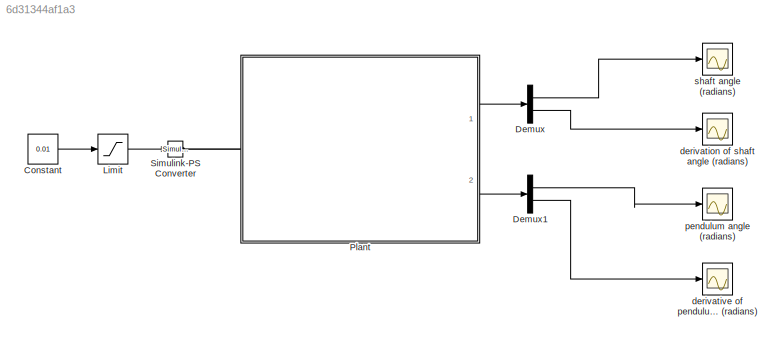
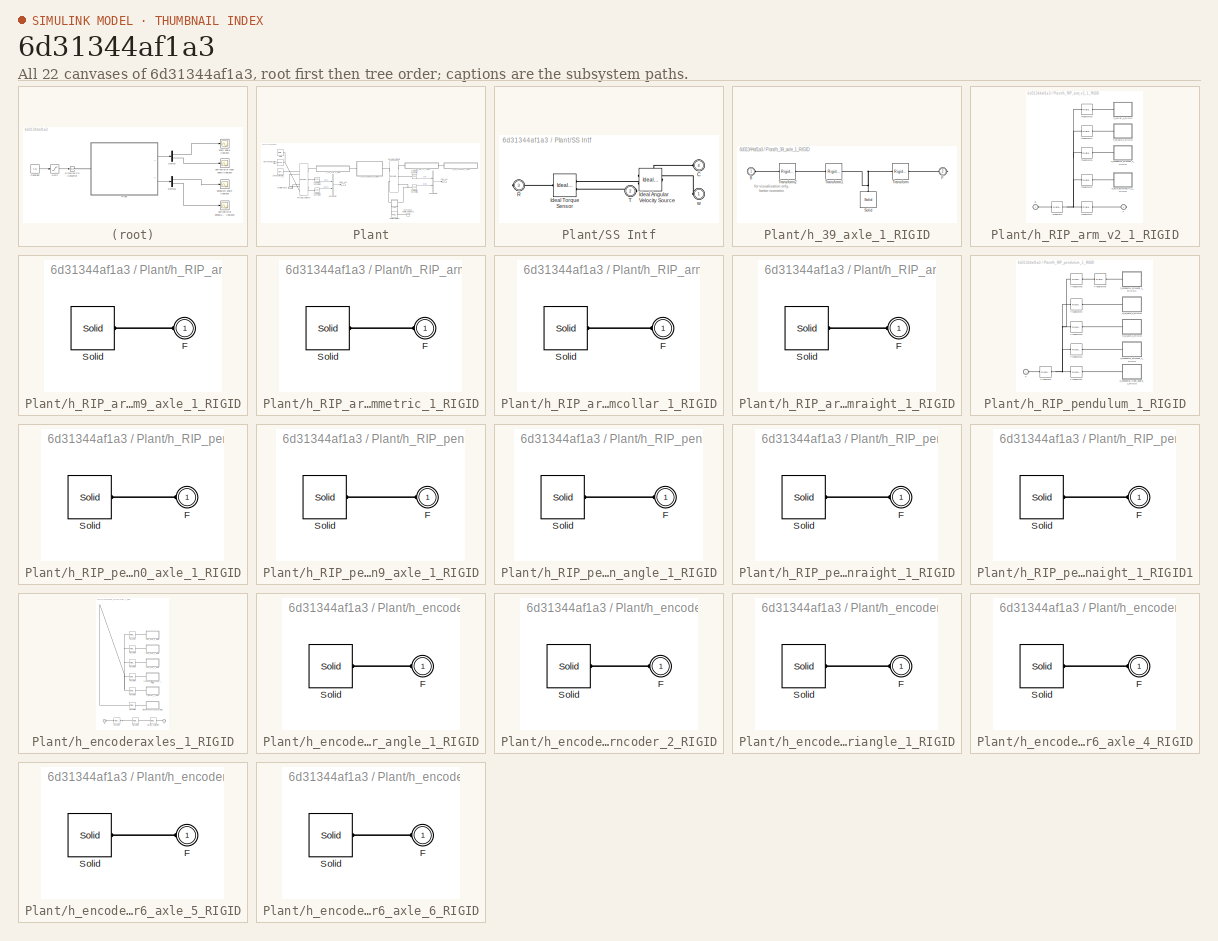
[diagram: thumbnail index - all 22 canvases of the model, root first then tree order]
MODEL slx_6d31344af1a3
KIND model
BLOCK [Constant] Constant
  Value = 0.01
BLOCK [Demux] Demux
  Outputs = 2
  Ports = [1, 2]
BLOCK [Demux] Demux1
  Outputs = 2
  Ports = [1, 2]
BLOCK [Saturate] Limit
  LowerLimit = -0.1e3
  UpperLimit = 0.1e3
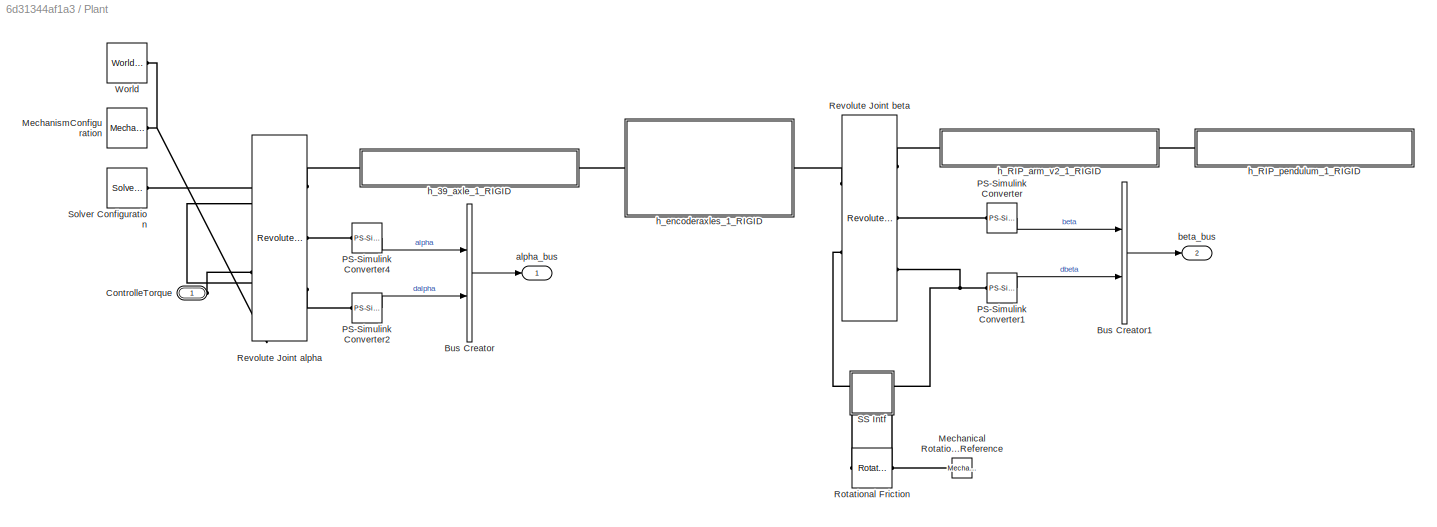
BLOCK [SubSystem] Plant
  Ports = [0, 2, 0, 0, 0, 1]
  RequestExecContextInheritance = off
BLOCK [BusCreator] Plant/Bus Creator
  DisplayOption = bar
  Inputs = 2
  Ports = [2, 1]
BLOCK [BusCreator] Plant/Bus Creator1
  DisplayOption = bar
  Inputs = 2
  Ports = [2, 1]
BLOCK [PMIOPort] Plant/ControlleTorque
  Side = Left
BLOCK [Reference] Plant/Mechanical Rotational Reference  REF=fl_lib/Mechanical/Rotational Elements/Mechanical
Rotational Reference
  ClassName = reference
  ComponentPath = foundation.mechanical.rotational.reference
  ComponentVariantNames = reference
  ComponentVariants = foundation.mechanical.rotational.reference
  InternalSimscapePortConfiguration = {"Bottom":[],"Left":[{"id":"W","label":"","type":"foundation.mechanical.rotational.rotational"}],"Right":[],"Top":[]}
  LogSimulationData = off
  Ports = [0, 0, 0, 0, 0, 1]
  SchemaVersion = 1
  SourceBlock = fl_lib/Mechanical/Rotational Elements/Mechanical\nRotational Reference
  SourceFile = foundation.mechanical.rotational.reference
  SourceType = Mechanical\nRotational Reference
BLOCK [Reference] Plant/MechanismConfiguration  REF=sm_lib/Utilities/Mechanism
Configuration
  GravityUnits = m/s^2
  GravityVector = [0 0 -9.81]
  GravityVector_conf = compiletime
  LinearizationDelta = 0.001
  LogSimulationData = off
  Ports = [0, 0, 0, 0, 0, 0, 1]
  SourceBlock = sm_lib/Utilities/Mechanism\nConfiguration
  SourceType = Mechanism\nConfiguration
  UniformGravity = Constant
BLOCK [Reference] Plant/PS-Simulink Converter  REF=nesl_utility/PS-Simulink
Converter
  AffineConversion = off
  Frequencies = []
  LeftPortType = input
  PhysicalDomain = network_engine_domain
  Ports = [0, 1, 0, 0, 0, 1]
  PseudoPeriodic = off
  RTWMemSecDataConstants = Inherit from model
  RTWMemSecDataInternal = Inherit from model
  RTWMemSecDataParameters = Inherit from model
  RTWMemSecFuncExecute = Inherit from model
  RTWMemSecFuncInitTerm = Inherit from model
  RightPortType = output
  SourceBlock = nesl_utility/PS-Simulink\nConverter
  SourceType = PS-Simulink\nConverter
  SubClassName = ps_output
BLOCK [Reference] Plant/PS-Simulink Converter1  REF=nesl_utility/PS-Simulink
Converter
  AffineConversion = off
  Frequencies = []
  LeftPortType = input
  PhysicalDomain = network_engine_domain
  Ports = [0, 1, 0, 0, 0, 1]
  PseudoPeriodic = off
  RTWMemSecDataConstants = Inherit from model
  RTWMemSecDataInternal = Inherit from model
  RTWMemSecDataParameters = Inherit from model
  RTWMemSecFuncExecute = Inherit from model
  RTWMemSecFuncInitTerm = Inherit from model
  RightPortType = output
  SourceBlock = nesl_utility/PS-Simulink\nConverter
  SourceType = PS-Simulink\nConverter
  SubClassName = ps_output
BLOCK [Reference] Plant/PS-Simulink Converter2  REF=nesl_utility/PS-Simulink
Converter
  AffineConversion = off
  Frequencies = []
  LeftPortType = input
  PhysicalDomain = network_engine_domain
  Ports = [0, 1, 0, 0, 0, 1]
  PseudoPeriodic = off
  RTWMemSecDataConstants = Inherit from model
  RTWMemSecDataInternal = Inherit from model
  RTWMemSecDataParameters = Inherit from model
  RTWMemSecFuncExecute = Inherit from model
  RTWMemSecFuncInitTerm = Inherit from model
  RightPortType = output
  SourceBlock = nesl_utility/PS-Simulink\nConverter
  SourceType = PS-Simulink\nConverter
  SubClassName = ps_output
BLOCK [Reference] Plant/PS-Simulink Converter4  REF=nesl_utility/PS-Simulink
Converter
  AffineConversion = off
  Frequencies = []
  LeftPortType = input
  PhysicalDomain = network_engine_domain
  Ports = [0, 1, 0, 0, 0, 1]
  PseudoPeriodic = off
  RTWMemSecDataConstants = Inherit from model
  RTWMemSecDataInternal = Inherit from model
  RTWMemSecDataParameters = Inherit from model
  RTWMemSecFuncExecute = Inherit from model
  RTWMemSecFuncInitTerm = Inherit from model
  RightPortType = output
  SourceBlock = nesl_utility/PS-Simulink\nConverter
  SourceType = PS-Simulink\nConverter
  SubClassName = ps_output
BLOCK [Reference] Plant/Revolute Joint alpha  REF=sm_lib/Joints/Revolute Joint
  CompositeWrenchDir = FollowerOnBase
  CompositeWrenchFrame = BaseFrame
  DampingCoefficient = 1e-6
  DampingCoefficientUnits = N*m/(deg/s)
  DampingCoefficient_conf = compiletime
  EquilibriumPosition = 0
  EquilibriumPositionUnits = deg
  EquilibriumPosition_conf = compiletime
  JointMode = Normal
  LogSimulationData = off
  LowerLimitBound = -90
  LowerLimitBoundUnits = deg
  LowerLimitBound_conf = compiletime
  LowerLimitDamping = 10
  LowerLimitDampingUnits = N*m/(deg/s)
  LowerLimitDamping_conf = compiletime
  LowerLimitSpecify = off
  LowerLimitStiffness = 1e4
  LowerLimitStiffnessUnits = N*m/deg
  LowerLimitStiffness_conf = compiletime
  LowerLimitTransitionRegionWidth = 0.1
  LowerLimitTransitionRegionWidthUnits = deg
  LowerLimitTransitionRegionWidth_conf = compiletime
  MotionActuationMode = ComputedMotion
  Ports = [0, 0, 0, 0, 0, 2, 3]
  PositionTargetPriority = High
  PositionTargetSpecify = off
  PositionTargetValue = pi
  PositionTargetValueUnits = rad
  PositionTargetValue_conf = compiletime
  SenseAcceleration = off
  SenseConstraintForce = off
  SenseConstraintForceX = off
  SenseConstraintForceY = off
  SenseConstraintForceZ = off
  SenseConstraintTorque = off
  SenseConstraintTorqueX = off
  SenseConstraintTorqueY = off
  SenseConstraintTorqueZ = off
  SenseLowerLimitTorqueForce = off
  SensePosition = on
  SenseTorqueForce = off
  SenseTotalForce = off
  SenseTotalForceX = off
  SenseTotalForceY = off
  SenseTotalForceZ = off
  SenseTotalTorque = off
  SenseTotalTorqueX = off
  SenseTotalTorqueY = off
  SenseTotalTorqueZ = off
  SenseUpperLimitTorqueForce = off
  SenseVelocity = on
  SourceBlock = sm_lib/Joints/Revolute Joint
  SourceType = Revolute Joint
  SpringStiffness = 1e-7
  SpringStiffnessUnits = N*m/deg
  SpringStiffness_conf = compiletime
  TorqueActuationMode = InputTorque
  UpperLimitBound = 90
  UpperLimitBoundUnits = deg
  UpperLimitBound_conf = compiletime
  UpperLimitDamping = 10
  UpperLimitDampingUnits = N*m/(deg/s)
  UpperLimitDamping_conf = compiletime
  UpperLimitSpecify = off
  UpperLimitStiffness = 1e4
  UpperLimitStiffnessUnits = N*m/deg
  UpperLimitStiffness_conf = compiletime
  UpperLimitTransitionRegionWidth = 0.1
  UpperLimitTransitionRegionWidthUnits = deg
  UpperLimitTransitionRegionWidth_conf = compiletime
  VelocityTargetPriority = High
  VelocityTargetSpecify = off
  VelocityTargetValue = 0
  VelocityTargetValueUnits = deg/s
  VelocityTargetValue_conf = compiletime
BLOCK [Reference] Plant/Revolute Joint beta  REF=sm_lib/Joints/Revolute Joint
  CompositeWrenchDir = FollowerOnBase
  CompositeWrenchFrame = BaseFrame
  DampingCoefficient = 0
  DampingCoefficientUnits = m*s*N/rad
  DampingCoefficient_conf = compiletime
  EquilibriumPosition = 0
  EquilibriumPositionUnits = rad
  EquilibriumPosition_conf = compiletime
  JointMode = Normal
  LogSimulationData = off
  LowerLimitBound = -90
  LowerLimitBoundUnits = deg
  LowerLimitBound_conf = compiletime
  LowerLimitDamping = 10
  LowerLimitDampingUnits = N*m/(deg/s)
  LowerLimitDamping_conf = compiletime
  LowerLimitSpecify = off
  LowerLimitStiffness = 1e4
  LowerLimitStiffnessUnits = N*m/deg
  LowerLimitStiffness_conf = compiletime
  LowerLimitTransitionRegionWidth = 0.1
  LowerLimitTransitionRegionWidthUnits = deg
  LowerLimitTransitionRegionWidth_conf = compiletime
  MotionActuationMode = ComputedMotion
  Ports = [0, 0, 0, 0, 0, 2, 3]
  PositionTargetPriority = Low
  PositionTargetSpecify = on
  PositionTargetValue = 180
  PositionTargetValueUnits = deg
  PositionTargetValue_conf = compiletime
  SenseAcceleration = off
  SenseConstraintForce = off
  SenseConstraintForceX = off
  SenseConstraintForceY = off
  SenseConstraintForceZ = off
  SenseConstraintTorque = off
  SenseConstraintTorqueX = off
  SenseConstraintTorqueY = off
  SenseConstraintTorqueZ = off
  SenseLowerLimitTorqueForce = off
  SensePosition = on
  SenseTorqueForce = off
  SenseTotalForce = off
  SenseTotalForceX = off
  SenseTotalForceY = off
  SenseTotalForceZ = off
  SenseTotalTorque = off
  SenseTotalTorqueX = off
  SenseTotalTorqueY = off
  SenseTotalTorqueZ = off
  SenseUpperLimitTorqueForce = off
  SenseVelocity = on
  SourceBlock = sm_lib/Joints/Revolute Joint
  SourceType = Revolute Joint
  SpringStiffness = 0
  SpringStiffnessUnits = m*N/rad
  SpringStiffness_conf = compiletime
  TorqueActuationMode = InputTorque
  UpperLimitBound = 90
  UpperLimitBoundUnits = deg
  UpperLimitBound_conf = compiletime
  UpperLimitDamping = 10
  UpperLimitDampingUnits = N*m/(deg/s)
  UpperLimitDamping_conf = compiletime
  UpperLimitSpecify = off
  UpperLimitStiffness = 1e4
  UpperLimitStiffnessUnits = N*m/deg
  UpperLimitStiffness_conf = compiletime
  UpperLimitTransitionRegionWidth = 0.1
  UpperLimitTransitionRegionWidthUnits = deg
  UpperLimitTransitionRegionWidth_conf = compiletime
  VelocityTargetPriority = High
  VelocityTargetSpecify = on
  VelocityTargetValue = 0
  VelocityTargetValueUnits = deg/s
  VelocityTargetValue_conf = compiletime
BLOCK [Reference] Plant/Rotational Friction  REF=fl_lib/Mechanical/Rotational Elements/Rotational Friction
  ClassName = friction
  Col_trq = 0.0002
  Col_trq_conf = compiletime
  Col_trq_unit = mN*m
  ComponentPath = foundation.mechanical.rotational.friction
  ComponentVariantNames = friction
  ComponentVariants = foundation.mechanical.rotational.friction
  InternalSimscapePortConfiguration = {"Bottom":[],"Left":[{"id":"R","label":"R","type":"foundation.mechanical.rotational.rotational"}],"Right":[{"id":"C","label":"C","type":"foundation.mechanical.rotational.rotational"}],"Top":[]}
  LogSimulationData = off
  Ports = [0, 0, 0, 0, 0, 1, 1]
  SchemaVersion = 1
  SourceBlock = fl_lib/Mechanical/Rotational Elements/Rotational Friction
  SourceFile = foundation.mechanical.rotational.friction
  SourceType = Rotational Friction
  brkwy_trq = 0.0004
  brkwy_trq_conf = compiletime
  brkwy_trq_unit = mN*m
  brkwy_vel = 0.12128
  brkwy_vel_conf = compiletime
  brkwy_vel_unit = rad/s
  t = 0
  t_nominal_specify = off
  t_nominal_unit = N*m
  t_nominal_value = 1
  t_priority = High
  t_specify = off
  t_unit = N*m
  visc_coef = 0.001
  visc_coef_conf = compiletime
  visc_coef_unit = m*s*mN/rad
  w = 0
  w_nominal_specify = off
  w_nominal_unit = rad/s
  w_nominal_value = 1
  w_priority = High
  w_specify = off
  w_unit = rad/s
BLOCK [SubSystem] Plant/SS Intf
  Ports = [0, 0, 0, 0, 0, 2, 2]
  RequestExecContextInheritance = off
BLOCK [PMIOPort] Plant/SS Intf/C
  Port = 4
  Side = Left
BLOCK [Reference] Plant/SS Intf/Ideal Angular Velocity Source  REF=fl_lib/Mechanical/Mechanical Sources/Ideal Angular
Velocity Source
  ClassName = angular_velocity
  ComponentPath = foundation.mechanical.sources.angular_velocity
  ComponentVariantNames = angular_velocity
  ComponentVariants = foundation.mechanical.sources.angular_velocity
  InternalSimscapePortConfiguration = {"Bottom":[],"Left":[{"id":"R","label":"R","type":"foundation.mechanical.rotational.rotational"}],"Right":[{"id":"S","label":"S","type":"input"},{"id":"C","label":"C","type":"foundation.mechanical.rotational.rotational"}],"Top":[]}
  LogSimulationData = off
  Ports = [0, 0, 0, 0, 0, 1, 2]
  SchemaVersion = 1
  SourceBlock = fl_lib/Mechanical/Mechanical Sources/Ideal Angular\nVelocity Source
  SourceFile = foundation.mechanical.sources.angular_velocity
  SourceType = Ideal Angular\nVelocity Source
BLOCK [Reference] Plant/SS Intf/Ideal Torque Sensor  REF=fl_lib/Mechanical/Mechanical Sensors/Ideal Torque Sensor
  ClassName = torque
  ComponentPath = foundation.mechanical.sensors.torque
  ComponentVariantNames = torque
  ComponentVariants = foundation.mechanical.sensors.torque
  InternalSimscapePortConfiguration = {"Bottom":[],"Left":[{"id":"R","label":"R","type":"foundation.mechanical.rotational.rotational"}],"Right":[{"id":"C","label":"C","type":"foundation.mechanical.rotational.rotational"},{"id":"T","label":"T","type":"output"}],"Top":[]}
  LogSimulationData = off
  Ports = [0, 0, 0, 0, 0, 1, 2]
  SchemaVersion = 1
  SourceBlock = fl_lib/Mechanical/Mechanical Sensors/Ideal Torque Sensor
  SourceFile = foundation.mechanical.sensors.torque
  SourceType = Ideal Torque Sensor
BLOCK [PMIOPort] Plant/SS Intf/R
  Port = 3
  Side = Right
BLOCK [PMIOPort] Plant/SS Intf/T
  Port = 2
  Side = Right
BLOCK [PMIOPort] Plant/SS Intf/w
  Side = Left
BLOCK [Reference] Plant/Solver Configuration  REF=nesl_utility/Solver
Configuration
  AbsTol = 1e-06
  AutomaticFiltering = on
  DelaysMemoryBudget = 1024
  DoDC = off
  DoFixedCost = off
  EnableSwitchedLinearOptims = on
  EquationFormulation = NE_TIME_EF
  FilteringTimeConstant = 0.001
  FrequencyDomain = off
  Harmonics = []
  LeftPortType = input
  LinearAlgebra = Sparse
  LocalSolverChoice = NE_BACKWARD_EULER_ADVANCER
  LocalSolverSampleTime = 1e-3
  MaxModeIter = 2
  MaxNonlinIter = 3
  MinStep = 1e-09
  NumHomotopyIterations = 100
  PartitionMemoryBudget = 1024
  PartitionMethod = FAST
  PartitionStorageMethod = AS_NEEDED
  PhasorMode = off
  PhasorModeNumHarmonics = 1
  PhysicalDomain = network_engine_domain
  Ports = [0, 0, 0, 0, 0, 0, 1]
  Profile = off
  RTWMemSecDataConstants = Inherit from model
  RTWMemSecDataInternal = Inherit from model
  RTWMemSecDataParameters = Inherit from model
  RTWMemSecFuncExecute = Inherit from model
  RTWMemSecFuncInitTerm = Inherit from model
  RelTol = 0.001
  ResidualTolerance = 1e-09
  RevertToSquareIcSolve = off
  RightPortType = generic
  SimulateNoise = off
  SourceBlock = nesl_utility/Solver\nConfiguration
  SourceType = Solver\nConfiguration
  SubClassName = solver
  ToWorkspace = off
  Tones = []
  UseCCode = off
  UseLocalSampling = off
  UseLocalSolver = off
BLOCK [Reference] Plant/World  REF=sm_lib/Frames and
Transforms/World Frame
  LogSimulationData = off
  Ports = [0, 0, 0, 0, 0, 0, 1]
  SourceBlock = sm_lib/Frames and\nTransforms/World Frame
  SourceType = World Frame
BLOCK [Outport] Plant/alpha_bus
BLOCK [Outport] Plant/beta_bus
  Port = 2
BLOCK [SubSystem] Plant/h_39_axle_1_RIGID
  Ports = [0, 0, 0, 0, 0, 1, 1]
  RequestExecContextInheritance = off
BLOCK [PMIOPort] Plant/h_39_axle_1_RIGID/B
  Side = Left
BLOCK [PMIOPort] Plant/h_39_axle_1_RIGID/F
  Port = 2
  Side = Right
BLOCK [Reference] Plant/h_39_axle_1_RIGID/Solid  REF=sm_lib/Body Elements/Solid
  BasedOnType = Density
  CenterOfMass = [0 0 0]
  CenterOfMassUnits = mm
  CenterOfMass_conf = compiletime
  Density = 1000
  DensityUnits = kg/(m^3)
  Density_conf = compiletime
  DoExposeReferenceFrame = on
  ExportConvexHullGeometry = off
  ExtGeomFileName = h_39_axle_Default_sldprt.STL
  ExtGeomFileUnits = mm
  GraphicAmbientColor = [0.15 0.15 0.15 1.0]
  GraphicAmbientColor_conf = compiletime
  GraphicDiffuseColor = [0.4 0.4 0.4]
  GraphicDiffuseColor_conf = compiletime
  GraphicEmissiveColor = [0.0 0.0 0.0 1.0]
  GraphicEmissiveColor_conf = compiletime
  GraphicOpacity = 1
  GraphicOpacity_conf = compiletime
  GraphicShininess = 75
  GraphicShininess_conf = compiletime
  GraphicSpecularColor = [0.5 0.5 0.5 1.0]
  GraphicSpecularColor_conf = compiletime
  GraphicType = FromGeometry
  GraphicVisPropType = SimpleVisualProperties
  InertiaType = Custom
  LogSimulationData = off
  MarkerShape = Sphere
  MarkerSize = 10
  MarkerSizeUnits = m
  MarkerSize_conf = compiletime
  Mass = 0.00052672018519800228
  MassUnits = kg
  Mass_conf = compiletime
  MomentsOfInertia = [0.0012508560304239273 0.066771141817072402 0.066771141817072402]
  MomentsOfInertiaUnits = kg*mm^2
  MomentsOfInertia_conf = compiletime
  Ports = [0, 0, 0, 0, 0, 0, 1]
  ProductsOfInertia = [0 0 0]
  ProductsOfInertiaUnits = kg*mm^2
  ProductsOfInertia_conf = compiletime
  SerializedFrames = <Frames/>
  SourceBlock = sm_lib/Body Elements/Solid
  SourceType = File Solid
  StepReaderType = HEX
  UnitType = Custom
BLOCK [Reference] Plant/h_39_axle_1_RIGID/Transform  REF=sm_lib/Frames and
Transforms/Rigid
Transform
  BaseAlignAxisA = +Y
  BaseAlignAxisB = +Z
  FollAlignAxisA = +X
  FollAlignAxisB = +Y
  LogSimulationData = off
  Ports = [0, 0, 0, 0, 0, 1, 1]
  RotationAngle = pi/2
  RotationAngleUnits = rad
  RotationAngle_conf = compiletime
  RotationArbitraryAxis = [0.70549464967288755 0.067487766045881178 -0.70549464967288456]
  RotationArbitraryAxis_conf = compiletime
  RotationMatrix = [1 0 0; 0 1 0; 0 0 1]
  RotationMatrix_conf = compiletime
  RotationMethod = StandardAxis
  RotationSequence = XYX
  RotationSequenceAngles = [0 0 0]
  RotationSequenceAnglesUnits = deg
  RotationSequenceAngles_conf = compiletime
  RotationSequenceAxes = FollowerAxes
  RotationStandardAxis = -Y
  SourceBlock = sm_lib/Frames and\nTransforms/Rigid\nTransform
  SourceType = Rigid\nTransform
  TranslationCartesianOffset = [19.5 1.2534832698893993 1.25543121904946712 ]
  TranslationCartesianOffset_conf = compiletime
  TranslationLengthUnit = mm
  TranslationMethod = Cartesian
  TranslationROffset = 0
  TranslationROffsetUnits = m
  TranslationROffset_conf = compiletime
  TranslationStandardAxis = +Z
  TranslationStandardOffset = 0
  TranslationStandardOffset_conf = compiletime
  TranslationThetaOffset = 0
  TranslationThetaOffsetUnits = deg
  TranslationThetaOffset_conf = compiletime
  TranslationZOffset = 0
  TranslationZOffsetUnits = m
  TranslationZOffset_conf = compiletime
BLOCK [Reference] Plant/h_39_axle_1_RIGID/Transform1  REF=sm_lib/Frames and
Transforms/Rigid
Transform
  BaseAlignAxisA = +Y
  BaseAlignAxisB = +Z
  FollAlignAxisA = +X
  FollAlignAxisB = +Y
  LogSimulationData = off
  Ports = [0, 0, 0, 0, 0, 1, 1]
  RotationAngle = pi/2
  RotationAngleUnits = rad
  RotationAngle_conf = compiletime
  RotationArbitraryAxis = [0.70549464967288755 0.067487766045881178 -0.70549464967288456]
  RotationArbitraryAxis_conf = compiletime
  RotationMatrix = [1 0 0; 0 1 0; 0 0 1]
  RotationMatrix_conf = compiletime
  RotationMethod = StandardAxis
  RotationSequence = XYX
  RotationSequenceAngles = [0 0 0]
  RotationSequenceAnglesUnits = deg
  RotationSequenceAngles_conf = compiletime
  RotationSequenceAxes = FollowerAxes
  RotationStandardAxis = -Y
  SourceBlock = sm_lib/Frames and\nTransforms/Rigid\nTransform
  SourceType = Rigid\nTransform
  TranslationCartesianOffset = [0 0 19.5]
  TranslationCartesianOffset_conf = compiletime
  TranslationLengthUnit = mm
  TranslationMethod = Cartesian
  TranslationROffset = 0
  TranslationROffsetUnits = m
  TranslationROffset_conf = compiletime
  TranslationStandardAxis = +Z
  TranslationStandardOffset = 0
  TranslationStandardOffset_conf = compiletime
  TranslationThetaOffset = 0
  TranslationThetaOffsetUnits = deg
  TranslationThetaOffset_conf = compiletime
  TranslationZOffset = 0
  TranslationZOffsetUnits = m
  TranslationZOffset_conf = compiletime
BLOCK [Reference] Plant/h_39_axle_1_RIGID/Transform2  REF=sm_lib/Frames and
Transforms/Rigid
Transform
  BaseAlignAxisA = +Y
  BaseAlignAxisB = +Z
  FollAlignAxisA = +X
  FollAlignAxisB = +Y
  LogSimulationData = off
  Ports = [0, 0, 0, 0, 0, 1, 1]
  RotationAngle = pi
  RotationAngleUnits = rad
  RotationAngle_conf = compiletime
  RotationArbitraryAxis = [0.70549464967288755 0.067487766045881178 -0.70549464967288456]
  RotationArbitraryAxis_conf = compiletime
  RotationMatrix = [1 0 0; 0 1 0; 0 0 1]
  RotationMatrix_conf = compiletime
  RotationMethod = StandardAxis
  RotationSequence = XYX
  RotationSequenceAngles = [0 0 0]
  RotationSequenceAnglesUnits = deg
  RotationSequenceAngles_conf = compiletime
  RotationSequenceAxes = FollowerAxes
  RotationStandardAxis = +Z
  SourceBlock = sm_lib/Frames and\nTransforms/Rigid\nTransform
  SourceType = Rigid\nTransform
  TranslationCartesianOffset = [0 0 19.5]
  TranslationCartesianOffset_conf = compiletime
  TranslationLengthUnit = mm
  TranslationMethod = Cartesian
  TranslationROffset = 0
  TranslationROffsetUnits = m
  TranslationROffset_conf = compiletime
  TranslationStandardAxis = +Z
  TranslationStandardOffset = 0
  TranslationStandardOffset_conf = compiletime
  TranslationThetaOffset = 0
  TranslationThetaOffsetUnits = deg
  TranslationThetaOffset_conf = compiletime
  TranslationZOffset = 0
  TranslationZOffsetUnits = m
  TranslationZOffset_conf = compiletime
BLOCK [SubSystem] Plant/h_RIP_arm_v2_1_RIGID
  Ports = [0, 0, 0, 0, 0, 1, 1]
  RequestExecContextInheritance = off
BLOCK [PMIOPort] Plant/h_RIP_arm_v2_1_RIGID/B
  Side = Left
BLOCK [PMIOPort] Plant/h_RIP_arm_v2_1_RIGID/F
  Port = 2
  Side = Right
BLOCK [Reference] Plant/h_RIP_arm_v2_1_RIGID/Transform  REF=sm_lib/Frames and
Transforms/Rigid
Transform
  BaseAlignAxisA = +Y
  BaseAlignAxisB = +Z
  FollAlignAxisA = +X
  FollAlignAxisB = +Y
  LogSimulationData = off
  Ports = [0, 0, 0, 0, 0, 1, 1]
  RotationAngle = 2.0943951023931953
  RotationAngleUnits = rad
  RotationAngle_conf = compiletime
  RotationArbitraryAxis = [0.57735026918962584 -0.57735026918962595 0.57735026918962562]
  RotationArbitraryAxis_conf = compiletime
  RotationMatrix = [1 0 0; 0 1 0; 0 0 1]
  RotationMatrix_conf = compiletime
  RotationMethod = ArbitraryAxis
  RotationSequence = XYX
  RotationSequenceAngles = [0 0 0]
  RotationSequenceAnglesUnits = deg
  RotationSequenceAngles_conf = compiletime
  RotationSequenceAxes = FollowerAxes
  RotationStandardAxis = +Z
  SourceBlock = sm_lib/Frames and\nTransforms/Rigid\nTransform
  SourceType = Rigid\nTransform
  TranslationCartesianOffset = [-2.3499999999999996 11.000000000000007 49.543413938003653]
  TranslationCartesianOffset_conf = compiletime
  TranslationLengthUnit = mm
  TranslationMethod = Cartesian
  TranslationROffset = 0
  TranslationROffsetUnits = m
  TranslationROffset_conf = compiletime
  TranslationStandardAxis = +Z
  TranslationStandardOffset = 0
  TranslationStandardOffset_conf = compiletime
  TranslationThetaOffset = 0
  TranslationThetaOffsetUnits = deg
  TranslationThetaOffset_conf = compiletime
  TranslationZOffset = 0
  TranslationZOffsetUnits = m
  TranslationZOffset_conf = compiletime
BLOCK [Reference] Plant/h_RIP_arm_v2_1_RIGID/Transform1  REF=sm_lib/Frames and
Transforms/Rigid
Transform
  BaseAlignAxisA = +Y
  BaseAlignAxisB = +Z
  FollAlignAxisA = +X
  FollAlignAxisB = +Y
  LogSimulationData = off
  Ports = [0, 0, 0, 0, 0, 1, 1]
  RotationAngle = 2.0943951023931953
  RotationAngleUnits = rad
  RotationAngle_conf = compiletime
  RotationArbitraryAxis = [-0.57735026918962562 -0.57735026918962584 -0.57735026918962584]
  RotationArbitraryAxis_conf = compiletime
  RotationMatrix = [1 0 0; 0 1 0; 0 0 1]
  RotationMatrix_conf = compiletime
  RotationMethod = ArbitraryAxis
  RotationSequence = XYX
  RotationSequenceAngles = [0 0 0]
  RotationSequenceAnglesUnits = deg
  RotationSequenceAngles_conf = compiletime
  RotationSequenceAxes = FollowerAxes
  RotationStandardAxis = +Z
  SourceBlock = sm_lib/Frames and\nTransforms/Rigid\nTransform
  SourceType = Rigid\nTransform
  TranslationCartesianOffset = [52.337380238255371 20.27500000000154 24.811029445672951]
  TranslationCartesianOffset_conf = compiletime
  TranslationLengthUnit = mm
  TranslationMethod = Cartesian
  TranslationROffset = 0
  TranslationROffsetUnits = m
  TranslationROffset_conf = compiletime
  TranslationStandardAxis = +Z
  TranslationStandardOffset = 0
  TranslationStandardOffset_conf = compiletime
  TranslationThetaOffset = 0
  TranslationThetaOffsetUnits = deg
  TranslationThetaOffset_conf = compiletime
  TranslationZOffset = 0
  TranslationZOffsetUnits = m
  TranslationZOffset_conf = compiletime
BLOCK [Reference] Plant/h_RIP_arm_v2_1_RIGID/Transform2  REF=sm_lib/Frames and
Transforms/Rigid
Transform
  BaseAlignAxisA = +Y
  BaseAlignAxisB = +Z
  FollAlignAxisA = +X
  FollAlignAxisB = +Y
  LogSimulationData = off
  Ports = [0, 0, 0, 0, 0, 1, 1]
  RotationAngle = 1.5707963267948966
  RotationAngleUnits = rad
  RotationAngle_conf = compiletime
  RotationArbitraryAxis = [0 0 1]
  RotationArbitraryAxis_conf = compiletime
  RotationMatrix = [1 0 0; 0 1 0; 0 0 1]
  RotationMatrix_conf = compiletime
  RotationMethod = ArbitraryAxis
  RotationSequence = XYX
  RotationSequenceAngles = [0 0 0]
  RotationSequenceAnglesUnits = deg
  RotationSequenceAngles_conf = compiletime
  RotationSequenceAxes = FollowerAxes
  RotationStandardAxis = +Z
  SourceBlock = sm_lib/Frames and\nTransforms/Rigid\nTransform
  SourceType = Rigid\nTransform
  TranslationCartesianOffset = [-2.3499999999999908 64.5 49.543413938003681]
  TranslationCartesianOffset_conf = compiletime
  TranslationLengthUnit = mm
  TranslationMethod = Cartesian
  TranslationROffset = 0
  TranslationROffsetUnits = m
  TranslationROffset_conf = compiletime
  TranslationStandardAxis = +Z
  TranslationStandardOffset = 0
  TranslationStandardOffset_conf = compiletime
  TranslationThetaOffset = 0
  TranslationThetaOffsetUnits = deg
  TranslationThetaOffset_conf = compiletime
  TranslationZOffset = 0
  TranslationZOffsetUnits = m
  TranslationZOffset_conf = compiletime
BLOCK [Reference] Plant/h_RIP_arm_v2_1_RIGID/Transform3  REF=sm_lib/Frames and
Transforms/Rigid
Transform
  BaseAlignAxisA = +Y
  BaseAlignAxisB = +Z
  FollAlignAxisA = +X
  FollAlignAxisB = +Y
  LogSimulationData = off
  Ports = [0, 0, 0, 0, 0, 1, 1]
  RotationAngle = 1.5707963267948966
  RotationAngleUnits = rad
  RotationAngle_conf = compiletime
  RotationArbitraryAxis = [0 0 1]
  RotationArbitraryAxis_conf = compiletime
  RotationMatrix = [1 0 0; 0 1 0; 0 0 1]
  RotationMatrix_conf = compiletime
  RotationMethod = ArbitraryAxis
  RotationSequence = XYX
  RotationSequenceAngles = [0 0 0]
  RotationSequenceAnglesUnits = deg
  RotationSequenceAngles_conf = compiletime
  RotationSequenceAxes = FollowerAxes
  RotationStandardAxis = +Z
  SourceBlock = sm_lib/Frames and\nTransforms/Rigid\nTransform
  SourceType = Rigid\nTransform
  TranslationCartesianOffset = [-2.3499999999999908 56.699999999999996 49.543413938003681]
  TranslationCartesianOffset_conf = compiletime
  TranslationLengthUnit = mm
  TranslationMethod = Cartesian
  TranslationROffset = 0
  TranslationROffsetUnits = m
  TranslationROffset_conf = compiletime
  TranslationStandardAxis = +Z
  TranslationStandardOffset = 0
  TranslationStandardOffset_conf = compiletime
  TranslationThetaOffset = 0
  TranslationThetaOffsetUnits = deg
  TranslationThetaOffset_conf = compiletime
  TranslationZOffset = 0
  TranslationZOffsetUnits = m
  TranslationZOffset_conf = compiletime
BLOCK [Reference] Plant/h_RIP_arm_v2_1_RIGID/Transform4  REF=sm_lib/Frames and
Transforms/Rigid
Transform
  BaseAlignAxisA = +Y
  BaseAlignAxisB = +Z
  FollAlignAxisA = +X
  FollAlignAxisB = +Y
  LogSimulationData = off
  Ports = [0, 0, 0, 0, 0, 1, 1]
  RotationAngle = 1.5707963267948966
  RotationAngleUnits = rad
  RotationAngle_conf = compiletime
  RotationArbitraryAxis = [0 0 1]
  RotationArbitraryAxis_conf = compiletime
  RotationMatrix = [1 0 0; 0 1 0; 0 0 1]
  RotationMatrix_conf = compiletime
  RotationMethod = ArbitraryAxis
  RotationSequence = XYX
  RotationSequenceAngles = [0 0 0]
  RotationSequenceAnglesUnits = deg
  RotationSequenceAngles_conf = compiletime
  RotationSequenceAxes = FollowerAxes
  RotationStandardAxis = +Z
  SourceBlock = sm_lib/Frames and\nTransforms/Rigid\nTransform
  SourceType = Rigid\nTransform
  TranslationCartesianOffset = [-2.3499999999999841 84.40000000000002 49.543413938003681]
  TranslationCartesianOffset_conf = compiletime
  TranslationLengthUnit = mm
  TranslationMethod = Cartesian
  TranslationROffset = 0
  TranslationROffsetUnits = m
  TranslationROffset_conf = compiletime
  TranslationStandardAxis = +Z
  TranslationStandardOffset = 0
  TranslationStandardOffset_conf = compiletime
  TranslationThetaOffset = 0
  TranslationThetaOffsetUnits = deg
  TranslationThetaOffset_conf = compiletime
  TranslationZOffset = 0
  TranslationZOffsetUnits = m
  TranslationZOffset_conf = compiletime
BLOCK [Reference] Plant/h_RIP_arm_v2_1_RIGID/Transform5  REF=sm_lib/Frames and
Transforms/Rigid
Transform
  BaseAlignAxisA = +Y
  BaseAlignAxisB = +Z
  FollAlignAxisA = +X
  FollAlignAxisB = +Y
  LogSimulationData = off
  Ports = [0, 0, 0, 0, 0, 1, 1]
  RotationAngle = 1.5707963267948966
  RotationAngleUnits = rad
  RotationAngle_conf = compiletime
  RotationArbitraryAxis = [0 0 1]
  RotationArbitraryAxis_conf = compiletime
  RotationMatrix = [1 0 0; 0 1 0; 0 0 1]
  RotationMatrix_conf = compiletime
  RotationMethod = ArbitraryAxis
  RotationSequence = XYX
  RotationSequenceAngles = [0 0 0]
  RotationSequenceAnglesUnits = deg
  RotationSequenceAngles_conf = compiletime
  RotationSequenceAxes = FollowerAxes
  RotationStandardAxis = +Z
  SourceBlock = sm_lib/Frames and\nTransforms/Rigid\nTransform
  SourceType = Rigid\nTransform
  TranslationCartesianOffset = [-2.3499999999999979 16.900000000000002 49.543413938003681]
  TranslationCartesianOffset_conf = compiletime
  TranslationLengthUnit = mm
  TranslationMethod = Cartesian
  TranslationROffset = 0
  TranslationROffsetUnits = m
  TranslationROffset_conf = compiletime
  TranslationStandardAxis = +Z
  TranslationStandardOffset = 0
  TranslationStandardOffset_conf = compiletime
  TranslationThetaOffset = 0
  TranslationThetaOffsetUnits = deg
  TranslationThetaOffset_conf = compiletime
  TranslationZOffset = 0
  TranslationZOffsetUnits = m
  TranslationZOffset_conf = compiletime
BLOCK [SubSystem] Plant/h_RIP_arm_v2_1_RIGID/h_39_axle_1_RIGID
  Ports = [0, 0, 0, 0, 0, 1]
  RequestExecContextInheritance = off
BLOCK [PMIOPort] Plant/h_RIP_arm_v2_1_RIGID/h_39_axle_1_RIGID/F
  Side = Left
BLOCK [Reference] Plant/h_RIP_arm_v2_1_RIGID/h_39_axle_1_RIGID/Solid  REF=sm_lib/Body Elements/Solid
  BasedOnType = Density
  CenterOfMass = [0 0 0]
  CenterOfMassUnits = mm
  CenterOfMass_conf = compiletime
  Density = 1000
  DensityUnits = kg/(m^3)
  Density_conf = compiletime
  DoExposeReferenceFrame = on
  ExportConvexHullGeometry = off
  ExtGeomFileName = h_39_axle_Default_sldprt.STL
  ExtGeomFileUnits = mm
  GraphicAmbientColor = [0.15 0.15 0.15 1.0]
  GraphicAmbientColor_conf = compiletime
  GraphicDiffuseColor = [0.4 0.4 0.4]
  GraphicDiffuseColor_conf = compiletime
  GraphicEmissiveColor = [0.0 0.0 0.0 1.0]
  GraphicEmissiveColor_conf = compiletime
  GraphicOpacity = 1
  GraphicOpacity_conf = compiletime
  GraphicShininess = 75
  GraphicShininess_conf = compiletime
  GraphicSpecularColor = [0.5 0.5 0.5 1.0]
  GraphicSpecularColor_conf = compiletime
  GraphicType = FromGeometry
  GraphicVisPropType = SimpleVisualProperties
  InertiaType = Custom
  LogSimulationData = off
  MarkerShape = Sphere
  MarkerSize = 10
  MarkerSizeUnits = m
  MarkerSize_conf = compiletime
  Mass = 0.00052672018519800228
  MassUnits = kg
  Mass_conf = compiletime
  MomentsOfInertia = [0.0012508560304239273 0.066771141817072402 0.066771141817072402]
  MomentsOfInertiaUnits = kg*mm^2
  MomentsOfInertia_conf = compiletime
  Ports = [0, 0, 0, 0, 0, 0, 1]
  ProductsOfInertia = [0 0 0]
  ProductsOfInertiaUnits = kg*mm^2
  ProductsOfInertia_conf = compiletime
  SerializedFrames = <Frames/>
  SourceBlock = sm_lib/Body Elements/Solid
  SourceType = File Solid
  StepReaderType = HEX
  UnitType = Custom
BLOCK [SubSystem] Plant/h_RIP_arm_v2_1_RIGID/h_axle_asymmetric_1_RIGID
  Ports = [0, 0, 0, 0, 0, 1]
  RequestExecContextInheritance = off
BLOCK [PMIOPort] Plant/h_RIP_arm_v2_1_RIGID/h_axle_asymmetric_1_RIGID/F
  Side = Left
BLOCK [Reference] Plant/h_RIP_arm_v2_1_RIGID/h_axle_asymmetric_1_RIGID/Solid  REF=sm_lib/Body Elements/Solid
  BasedOnType = Density
  CenterOfMass = [-32.724157118781108 0 0]
  CenterOfMassUnits = mm
  CenterOfMass_conf = compiletime
  Density = 1000
  DensityUnits = kg/(m^3)
  Density_conf = compiletime
  DoExposeReferenceFrame = on
  ExportConvexHullGeometry = off
  ExtGeomFileName = h_axle_asymmetric_Default_sldprt.STL
  ExtGeomFileUnits = mm
  GraphicAmbientColor = [0.15 0.15 0.15 1.0]
  GraphicAmbientColor_conf = compiletime
  GraphicDiffuseColor = [0.4 0.4 0.4]
  GraphicDiffuseColor_conf = compiletime
  GraphicEmissiveColor = [0.0 0.0 0.0 1.0]
  GraphicEmissiveColor_conf = compiletime
  GraphicOpacity = 1
  GraphicOpacity_conf = compiletime
  GraphicShininess = 75
  GraphicShininess_conf = compiletime
  GraphicSpecularColor = [0.5 0.5 0.5 1.0]
  GraphicSpecularColor_conf = compiletime
  GraphicType = FromGeometry
  GraphicVisPropType = SimpleVisualProperties
  InertiaType = Custom
  LogSimulationData = off
  MarkerShape = Sphere
  MarkerSize = 10
  MarkerSizeUnits = m
  MarkerSize_conf = compiletime
  Mass = 0.00086673289514495463
  MassUnits = kg
  Mass_conf = compiletime
  MomentsOfInertia = [0.0021064022529787255 0.30868093682298109 0.30868093682298109]
  MomentsOfInertiaUnits = kg*mm^2
  MomentsOfInertia_conf = compiletime
  Ports = [0, 0, 0, 0, 0, 0, 1]
  ProductsOfInertia = [0 0 0]
  ProductsOfInertiaUnits = kg*mm^2
  ProductsOfInertia_conf = compiletime
  SerializedFrames = <Frames/>
  SourceBlock = sm_lib/Body Elements/Solid
  SourceType = File Solid
  StepReaderType = HEX
  UnitType = Custom
BLOCK [SubSystem] Plant/h_RIP_arm_v2_1_RIGID/h_collar_1_RIGID
  Ports = [0, 0, 0, 0, 0, 1]
  RequestExecContextInheritance = off
BLOCK [PMIOPort] Plant/h_RIP_arm_v2_1_RIGID/h_collar_1_RIGID/F
  Side = Left
BLOCK [Reference] Plant/h_RIP_arm_v2_1_RIGID/h_collar_1_RIGID/Solid  REF=sm_lib/Body Elements/Solid
  BasedOnType = Density
  CenterOfMass = [-4.1099863397593017 -8.0683370661362358e-06 -1.5183618387869649e-09]
  CenterOfMassUnits = mm
  CenterOfMass_conf = compiletime
  Density = 1000
  DensityUnits = kg/(m^3)
  Density_conf = compiletime
  DoExposeReferenceFrame = on
  ExportConvexHullGeometry = off
  ExtGeomFileName = h_collar_Default_sldprt.STL
  ExtGeomFileUnits = mm
  GraphicAmbientColor = [0.15 0.15 0.15 1.0]
  GraphicAmbientColor_conf = compiletime
  GraphicDiffuseColor = [0.4 0.4 0.4]
  GraphicDiffuseColor_conf = compiletime
  GraphicEmissiveColor = [0.0 0.0 0.0 1.0]
  GraphicEmissiveColor_conf = compiletime
  GraphicOpacity = 1
  GraphicOpacity_conf = compiletime
  GraphicShininess = 75
  GraphicShininess_conf = compiletime
  GraphicSpecularColor = [0.5 0.5 0.5 1.0]
  GraphicSpecularColor_conf = compiletime
  GraphicType = FromGeometry
  GraphicVisPropType = SimpleVisualProperties
  InertiaType = Custom
  LogSimulationData = off
  MarkerShape = Sphere
  MarkerSize = 10
  MarkerSizeUnits = m
  MarkerSize_conf = compiletime
  Mass = 0.00013195457400179582
  MassUnits = kg
  Mass_conf = compiletime
  MomentsOfInertia = [0.00096990614842468788 0.0014236116618315936 0.0013918747546668444]
  MomentsOfInertiaUnits = kg*mm^2
  MomentsOfInertia_conf = compiletime
  Ports = [0, 0, 0, 0, 0, 0, 1]
  ProductsOfInertia = [0 0 0]
  ProductsOfInertiaUnits = kg*mm^2
  ProductsOfInertia_conf = compiletime
  SerializedFrames = <Frames/>
  SourceBlock = sm_lib/Body Elements/Solid
  SourceType = File Solid
  StepReaderType = HEX
  UnitType = Custom
BLOCK [SubSystem] Plant/h_RIP_arm_v2_1_RIGID/h_connector_straight_1_RIGID
  Ports = [0, 0, 0, 0, 0, 1]
  RequestExecContextInheritance = off
BLOCK [PMIOPort] Plant/h_RIP_arm_v2_1_RIGID/h_connector_straight_1_RIGID/F
  Side = Left
BLOCK [Reference] Plant/h_RIP_arm_v2_1_RIGID/h_connector_straight_1_RIGID/Solid  REF=sm_lib/Body Elements/Solid
  BasedOnType = Density
  CenterOfMass = [8.0000017249971691 0 0]
  CenterOfMassUnits = mm
  CenterOfMass_conf = compiletime
  Density = 1000
  DensityUnits = kg/(m^3)
  Density_conf = compiletime
  DoExposeReferenceFrame = on
  ExportConvexHullGeometry = off
  ExtGeomFileName = h_connector_straight_Default_sldprt.STL
  ExtGeomFileUnits = mm
  GraphicAmbientColor = [0.15 0.15 0.15 1.0]
  GraphicAmbientColor_conf = compiletime
  GraphicDiffuseColor = [1 0 0]
  GraphicDiffuseColor_conf = compiletime
  GraphicEmissiveColor = [0.0 0.0 0.0 1.0]
  GraphicEmissiveColor_conf = compiletime
  GraphicOpacity = 1
  GraphicOpacity_conf = compiletime
  GraphicShininess = 75
  GraphicShininess_conf = compiletime
  GraphicSpecularColor = [0.5 0.5 0.5 1.0]
  GraphicSpecularColor_conf = compiletime
  GraphicType = FromGeometry
  GraphicVisPropType = SimpleVisualProperties
  InertiaType = Custom
  LogSimulationData = off
  MarkerShape = Sphere
  MarkerSize = 10
  MarkerSizeUnits = m
  MarkerSize_conf = compiletime
  Mass = 0.00043271308549453917
  MassUnits = kg
  Mass_conf = compiletime
  MomentsOfInertia = [0.0031783748060293278 0.010562783552465226 0.010415546819518159]
  MomentsOfInertiaUnits = kg*mm^2
  MomentsOfInertia_conf = compiletime
  Ports = [0, 0, 0, 0, 0, 0, 1]
  ProductsOfInertia = [0 0 0]
  ProductsOfInertiaUnits = kg*mm^2
  ProductsOfInertia_conf = compiletime
  SerializedFrames = <Frames/>
  SourceBlock = sm_lib/Body Elements/Solid
  SourceType = File Solid
  StepReaderType = HEX
  UnitType = Custom
BLOCK [SubSystem] Plant/h_RIP_pendulum_1_RIGID
  Ports = [0, 0, 0, 0, 0, 1]
  RequestExecContextInheritance = off
BLOCK [PMIOPort] Plant/h_RIP_pendulum_1_RIGID/F
  Side = Left
BLOCK [Reference] Plant/h_RIP_pendulum_1_RIGID/Transform  REF=sm_lib/Frames and
Transforms/Rigid
Transform
  BaseAlignAxisA = +Y
  BaseAlignAxisB = +Z
  FollAlignAxisA = +X
  FollAlignAxisB = +Y
  LogSimulationData = off
  Ports = [0, 0, 0, 0, 0, 1, 1]
  RotationAngle = 2.0943951023931988
  RotationAngleUnits = rad
  RotationAngle_conf = compiletime
  RotationArbitraryAxis = [0.57735026918962673 -0.5773502691896244 0.57735026918962606]
  RotationArbitraryAxis_conf = compiletime
  RotationMatrix = [1 0 0; 0 1 0; 0 0 1]
  RotationMatrix_conf = compiletime
  RotationMethod = ArbitraryAxis
  RotationSequence = XYX
  RotationSequenceAngles = [0 0 0]
  RotationSequenceAnglesUnits = deg
  RotationSequenceAngles_conf = compiletime
  RotationSequenceAxes = FollowerAxes
  RotationStandardAxis = +Z
  SourceBlock = sm_lib/Frames and\nTransforms/Rigid\nTransform
  SourceType = Rigid\nTransform
  TranslationCartesianOffset = [-191.15757664014251 -77.513756526474566 -2.6766783819563784]
  TranslationCartesianOffset_conf = compiletime
  TranslationLengthUnit = mm
  TranslationMethod = Cartesian
  TranslationROffset = 0
  TranslationROffsetUnits = m
  TranslationROffset_conf = compiletime
  TranslationStandardAxis = +Z
  TranslationStandardOffset = 0
  TranslationStandardOffset_conf = compiletime
  TranslationThetaOffset = 0
  TranslationThetaOffsetUnits = deg
  TranslationThetaOffset_conf = compiletime
  TranslationZOffset = 0
  TranslationZOffsetUnits = m
  TranslationZOffset_conf = compiletime
BLOCK [Reference] Plant/h_RIP_pendulum_1_RIGID/Transform1  REF=sm_lib/Frames and
Transforms/Rigid
Transform
  BaseAlignAxisA = +Y
  BaseAlignAxisB = +Z
  FollAlignAxisA = +X
  FollAlignAxisB = +Y
  LogSimulationData = off
  Ports = [0, 0, 0, 0, 0, 1, 1]
  RotationAngle = 1.5707963267948999
  RotationAngleUnits = rad
  RotationAngle_conf = compiletime
  RotationArbitraryAxis = [0 0 1]
  RotationArbitraryAxis_conf = compiletime
  RotationMatrix = [1 0 0; 0 1 0; 0 0 1]
  RotationMatrix_conf = compiletime
  RotationMethod = ArbitraryAxis
  RotationSequence = XYX
  RotationSequenceAngles = [0 0 0]
  RotationSequenceAnglesUnits = deg
  RotationSequenceAngles_conf = compiletime
  RotationSequenceAxes = FollowerAxes
  RotationStandardAxis = +Z
  SourceBlock = sm_lib/Frames and\nTransforms/Rigid\nTransform
  SourceType = Rigid\nTransform
  TranslationCartesianOffset = [-136.47019640188407 -153.13875652647175 22.05570611037507]
  TranslationCartesianOffset_conf = compiletime
  TranslationLengthUnit = mm
  TranslationMethod = Cartesian
  TranslationROffset = 0
  TranslationROffsetUnits = m
  TranslationROffset_conf = compiletime
  TranslationStandardAxis = +Z
  TranslationStandardOffset = 0
  TranslationStandardOffset_conf = compiletime
  TranslationThetaOffset = 0
  TranslationThetaOffsetUnits = deg
  TranslationThetaOffset_conf = compiletime
  TranslationZOffset = 0
  TranslationZOffsetUnits = m
  TranslationZOffset_conf = compiletime
BLOCK [Reference] Plant/h_RIP_pendulum_1_RIGID/Transform2  REF=sm_lib/Frames and
Transforms/Rigid
Transform
  BaseAlignAxisA = +Y
  BaseAlignAxisB = +Z
  FollAlignAxisA = +X
  FollAlignAxisB = +Y
  LogSimulationData = off
  Ports = [0, 0, 0, 0, 0, 1, 1]
  RotationAngle = 1.5707963267949003
  RotationAngleUnits = rad
  RotationAngle_conf = compiletime
  RotationArbitraryAxis = [0 1 0]
  RotationArbitraryAxis_conf = compiletime
  RotationMatrix = [1 0 0; 0 1 0; 0 0 1]
  RotationMatrix_conf = compiletime
  RotationMethod = ArbitraryAxis
  RotationSequence = XYX
  RotationSequenceAngles = [0 0 0]
  RotationSequenceAnglesUnits = deg
  RotationSequenceAngles_conf = compiletime
  RotationSequenceAxes = FollowerAxes
  RotationStandardAxis = +Z
  SourceBlock = sm_lib/Frames and\nTransforms/Rigid\nTransform
  SourceType = Rigid\nTransform
  TranslationCartesianOffset = [-136.47019640188358 -165.03875652647181 128.15570611037563]
  TranslationCartesianOffset_conf = compiletime
  TranslationLengthUnit = mm
  TranslationMethod = Cartesian
  TranslationROffset = 0
  TranslationROffsetUnits = m
  TranslationROffset_conf = compiletime
  TranslationStandardAxis = +Z
  TranslationStandardOffset = 0
  TranslationStandardOffset_conf = compiletime
  TranslationThetaOffset = 0
  TranslationThetaOffsetUnits = deg
  TranslationThetaOffset_conf = compiletime
  TranslationZOffset = 0
  TranslationZOffsetUnits = m
  TranslationZOffset_conf = compiletime
BLOCK [Reference] Plant/h_RIP_pendulum_1_RIGID/Transform3  REF=sm_lib/Frames and
Transforms/Rigid
Transform
  BaseAlignAxisA = +Y
  BaseAlignAxisB = +Z
  FollAlignAxisA = +X
  FollAlignAxisB = +Y
  LogSimulationData = off
  Ports = [0, 0, 0, 0, 0, 1, 1]
  RotationAngle = 1.5707963267949003
  RotationAngleUnits = rad
  RotationAngle_conf = compiletime
  RotationArbitraryAxis = [0 1 0]
  RotationArbitraryAxis_conf = compiletime
  RotationMatrix = [1 0 0; 0 1 0; 0 0 1]
  RotationMatrix_conf = compiletime
  RotationMethod = ArbitraryAxis
  RotationSequence = XYX
  RotationSequenceAngles = [0 0 0]
  RotationSequenceAnglesUnits = deg
  RotationSequenceAngles_conf = compiletime
  RotationSequenceAxes = FollowerAxes
  RotationStandardAxis = +Z
  SourceBlock = sm_lib/Frames and\nTransforms/Rigid\nTransform
  SourceType = Rigid\nTransform
  TranslationCartesianOffset = [-136.47019640188373 -165.03875652647179 72.95570611037553]
  TranslationCartesianOffset_conf = compiletime
  TranslationLengthUnit = mm
  TranslationMethod = Cartesian
  TranslationROffset = 0
  TranslationROffsetUnits = m
  TranslationROffset_conf = compiletime
  TranslationStandardAxis = +Z
  TranslationStandardOffset = 0
  TranslationStandardOffset_conf = compiletime
  TranslationThetaOffset = 0
  TranslationThetaOffsetUnits = deg
  TranslationThetaOffset_conf = compiletime
  TranslationZOffset = 0
  TranslationZOffsetUnits = m
  TranslationZOffset_conf = compiletime
BLOCK [Reference] Plant/h_RIP_pendulum_1_RIGID/Transform4  REF=sm_lib/Frames and
Transforms/Rigid
Transform
  BaseAlignAxisA = +Y
  BaseAlignAxisB = +Z
  FollAlignAxisA = +X
  FollAlignAxisB = +Y
  LogSimulationData = off
  Ports = [0, 0, 0, 0, 0, 1, 1]
  RotationAngle = 1.5707963267949003
  RotationAngleUnits = rad
  RotationAngle_conf = compiletime
  RotationArbitraryAxis = [0 1 0]
  RotationArbitraryAxis_conf = compiletime
  RotationMatrix = [1 0 0; 0 1 0; 0 0 1]
  RotationMatrix_conf = compiletime
  RotationMethod = ArbitraryAxis
  RotationSequence = XYX
  RotationSequenceAngles = [0 0 0]
  RotationSequenceAnglesUnits = deg
  RotationSequenceAngles_conf = compiletime
  RotationSequenceAxes = FollowerAxes
  RotationStandardAxis = +Z
  SourceBlock = sm_lib/Frames and\nTransforms/Rigid\nTransform
  SourceType = Rigid\nTransform
  TranslationCartesianOffset = [-136.47019640188347 -165.03875652647181 159.85570611037573]
  TranslationCartesianOffset_conf = compiletime
  TranslationLengthUnit = mm
  TranslationMethod = Cartesian
  TranslationROffset = 0
  TranslationROffsetUnits = m
  TranslationROffset_conf = compiletime
  TranslationStandardAxis = +Z
  TranslationStandardOffset = 0
  TranslationStandardOffset_conf = compiletime
  TranslationThetaOffset = 0
  TranslationThetaOffsetUnits = deg
  TranslationThetaOffset_conf = compiletime
  TranslationZOffset = 0
  TranslationZOffsetUnits = m
  TranslationZOffset_conf = compiletime
BLOCK [Reference] Plant/h_RIP_pendulum_1_RIGID/Transform5  REF=sm_lib/Frames and
Transforms/Rigid
Transform
  BaseAlignAxisA = +Y
  BaseAlignAxisB = +Z
  FollAlignAxisA = +X
  FollAlignAxisB = +Y
  LogSimulationData = off
  Ports = [0, 0, 0, 0, 0, 1, 1]
  RotationAngle = 1.5707963267949003
  RotationAngleUnits = rad
  RotationAngle_conf = compiletime
  RotationArbitraryAxis = [0 1 0]
  RotationArbitraryAxis_conf = compiletime
  RotationMatrix = [1 0 0; 0 1 0; 0 0 1]
  RotationMatrix_conf = compiletime
  RotationMethod = ArbitraryAxis
  RotationSequence = XYX
  RotationSequenceAngles = [0 0 0]
  RotationSequenceAnglesUnits = deg
  RotationSequenceAngles_conf = compiletime
  RotationSequenceAxes = FollowerAxes
  RotationStandardAxis = +Z
  SourceBlock = sm_lib/Frames and\nTransforms/Rigid\nTransform
  SourceType = Rigid\nTransform
  TranslationCartesianOffset = [-136.47019640188347 -165.03875652647181 159.85570611037573]
  TranslationCartesianOffset_conf = compiletime
  TranslationLengthUnit = mm
  TranslationMethod = Cartesian
  TranslationROffset = 0
  TranslationROffsetUnits = m
  TranslationROffset_conf = compiletime
  TranslationStandardAxis = +Z
  TranslationStandardOffset = 0
  TranslationStandardOffset_conf = compiletime
  TranslationThetaOffset = 0
  TranslationThetaOffsetUnits = deg
  TranslationThetaOffset_conf = compiletime
  TranslationZOffset = 0
  TranslationZOffsetUnits = m
  TranslationZOffset_conf = compiletime
BLOCK [Reference] Plant/h_RIP_pendulum_1_RIGID/Transform6  REF=sm_lib/Frames and
Transforms/Rigid
Transform
  BaseAlignAxisA = +Y
  BaseAlignAxisB = +Z
  FollAlignAxisA = +X
  FollAlignAxisB = +Y
  LogSimulationData = off
  Ports = [0, 0, 0, 0, 0, 1, 1]
  RotationAngle = 1.5707963267949003
  RotationAngleUnits = rad
  RotationAngle_conf = compiletime
  RotationArbitraryAxis = [0 1 0]
  RotationArbitraryAxis_conf = compiletime
  RotationMatrix = [1 0 0; 0 1 0; 0 0 1]
  RotationMatrix_conf = compiletime
  RotationMethod = None
  RotationSequence = XYX
  RotationSequenceAngles = [0 0 0]
  RotationSequenceAnglesUnits = deg
  RotationSequenceAngles_conf = compiletime
  RotationSequenceAxes = FollowerAxes
  RotationStandardAxis = +Z
  SourceBlock = sm_lib/Frames and\nTransforms/Rigid\nTransform
  SourceType = Rigid\nTransform
  TranslationCartesianOffset = [-94.97019640188347/2 -0 0]
  TranslationCartesianOffset_conf = compiletime
  TranslationLengthUnit = mm
  TranslationMethod = Cartesian
  TranslationROffset = 0
  TranslationROffsetUnits = m
  TranslationROffset_conf = compiletime
  TranslationStandardAxis = +Z
  TranslationStandardOffset = 0
  TranslationStandardOffset_conf = compiletime
  TranslationThetaOffset = 0
  TranslationThetaOffsetUnits = deg
  TranslationThetaOffset_conf = compiletime
  TranslationZOffset = 0
  TranslationZOffsetUnits = m
  TranslationZOffset_conf = compiletime
BLOCK [SubSystem] Plant/h_RIP_pendulum_1_RIGID/h_10_axle_1_RIGID
  Ports = [0, 0, 0, 0, 0, 1]
  RequestExecContextInheritance = off
BLOCK [PMIOPort] Plant/h_RIP_pendulum_1_RIGID/h_10_axle_1_RIGID/F
  Side = Left
BLOCK [Reference] Plant/h_RIP_pendulum_1_RIGID/h_10_axle_1_RIGID/Solid  REF=sm_lib/Body Elements/Solid
  BasedOnType = Density
  CenterOfMass = [0 0 0]
  CenterOfMassUnits = mm
  CenterOfMass_conf = compiletime
  Density = 1000
  DensityUnits = kg/(m^3)
  Density_conf = compiletime
  DoExposeReferenceFrame = on
  ExportConvexHullGeometry = off
  ExtGeomFileName = h_10_axle_Default_sldprt.STL
  ExtGeomFileUnits = mm
  GraphicAmbientColor = [0.15 0.15 0.15 1.0]
  GraphicAmbientColor_conf = compiletime
  GraphicDiffuseColor = [0.4 0.4 0.4]
  GraphicDiffuseColor_conf = compiletime
  GraphicEmissiveColor = [0.0 0.0 0.0 1.0]
  GraphicEmissiveColor_conf = compiletime
  GraphicOpacity = 1
  GraphicOpacity_conf = compiletime
  GraphicShininess = 75
  GraphicShininess_conf = compiletime
  GraphicSpecularColor = [0.5 0.5 0.5 1.0]
  GraphicSpecularColor_conf = compiletime
  GraphicType = FromGeometry
  GraphicVisPropType = SimpleVisualProperties
  InertiaType = Custom
  LogSimulationData = off
  MarkerShape = Sphere
  MarkerSize = 10
  MarkerSizeUnits = m
  MarkerSize_conf = compiletime
  Mass = 0.0012730475598330083
  MassUnits = kg
  Mass_conf = compiletime
  MomentsOfInertia = [0.0030302598211620728 0.93526794388553403 0.93526794388553403]
  MomentsOfInertiaUnits = kg*mm^2
  MomentsOfInertia_conf = compiletime
  Ports = [0, 0, 0, 0, 0, 0, 1]
  ProductsOfInertia = [0 0 0]
  ProductsOfInertiaUnits = kg*mm^2
  ProductsOfInertia_conf = compiletime
  SerializedFrames = <Frames/>
  SourceBlock = sm_lib/Body Elements/Solid
  SourceType = File Solid
  StepReaderType = HEX
  UnitType = Custom
BLOCK [SubSystem] Plant/h_RIP_pendulum_1_RIGID/h_79_axle_1_RIGID
  Ports = [0, 0, 0, 0, 0, 1]
  RequestExecContextInheritance = off
BLOCK [PMIOPort] Plant/h_RIP_pendulum_1_RIGID/h_79_axle_1_RIGID/F
  Side = Left
BLOCK [Reference] Plant/h_RIP_pendulum_1_RIGID/h_79_axle_1_RIGID/Solid  REF=sm_lib/Body Elements/Solid
  BasedOnType = Density
  CenterOfMass = [0 0 0]
  CenterOfMassUnits = mm
  CenterOfMass_conf = compiletime
  Density = 1000
  DensityUnits = kg/(m^3)
  Density_conf = compiletime
  DoExposeReferenceFrame = on
  ExportConvexHullGeometry = off
  ExtGeomFileName = h_79_axle_Default_sldprt.STL
  ExtGeomFileUnits = mm
  GraphicAmbientColor = [0.15 0.15 0.15 1.0]
  GraphicAmbientColor_conf = compiletime
  GraphicDiffuseColor = [0.4 0.4 0.4]
  GraphicDiffuseColor_conf = compiletime
  GraphicEmissiveColor = [0.0 0.0 0.0 1.0]
  GraphicEmissiveColor_conf = compiletime
  GraphicOpacity = 1
  GraphicOpacity_conf = compiletime
  GraphicShininess = 75
  GraphicShininess_conf = compiletime
  GraphicSpecularColor = [0.5 0.5 0.5 1.0]
  GraphicSpecularColor_conf = compiletime
  GraphicType = FromGeometry
  GraphicVisPropType = SimpleVisualProperties
  InertiaType = Custom
  LogSimulationData = off
  MarkerShape = Sphere
  MarkerSize = 10
  MarkerSizeUnits = m
  MarkerSize_conf = compiletime
  Mass = 0.0010695037303870972
  MassUnits = kg
  Mass_conf = compiletime
  MomentsOfInertia = [0.0025449678782334885 0.55494180522567771 0.55494180522567771]
  MomentsOfInertiaUnits = kg*mm^2
  MomentsOfInertia_conf = compiletime
  Ports = [0, 0, 0, 0, 0, 0, 1]
  ProductsOfInertia = [0 0 0]
  ProductsOfInertiaUnits = kg*mm^2
  ProductsOfInertia_conf = compiletime
  SerializedFrames = <Frames/>
  SourceBlock = sm_lib/Body Elements/Solid
  SourceType = File Solid
  StepReaderType = HEX
  UnitType = Custom
BLOCK [SubSystem] Plant/h_RIP_pendulum_1_RIGID/h_connector_right_angle_1_RIGID
  Ports = [0, 0, 0, 0, 0, 1]
  RequestExecContextInheritance = off
BLOCK [PMIOPort] Plant/h_RIP_pendulum_1_RIGID/h_connector_right_angle_1_RIGID/F
  Side = Left
BLOCK [Reference] Plant/h_RIP_pendulum_1_RIGID/h_connector_right_angle_1_RIGID/Solid  REF=sm_lib/Body Elements/Solid
  BasedOnType = Density
  CenterOfMass = [-9.2850739875563288 3.0093098119264319e-05 2.6118746961723462]
  CenterOfMassUnits = mm
  CenterOfMass_conf = compiletime
  Density = 1000
  DensityUnits = kg/(m^3)
  Density_conf = compiletime
  DoExposeReferenceFrame = on
  ExportConvexHullGeometry = off
  ExtGeomFileName = h_connector_right_angle_Default_sldprt.STL
  ExtGeomFileUnits = mm
  GraphicAmbientColor = [0.15 0.15 0.15 1.0]
  GraphicAmbientColor_conf = compiletime
  GraphicDiffuseColor = [0.2 0.2 0.2]
  GraphicDiffuseColor_conf = compiletime
  GraphicEmissiveColor = [0.0 0.0 0.0 1.0]
  GraphicEmissiveColor_conf = compiletime
  GraphicOpacity = 1
  GraphicOpacity_conf = compiletime
  GraphicShininess = 75
  GraphicShininess_conf = compiletime
  GraphicSpecularColor = [0.5 0.5 0.5 1.0]
  GraphicSpecularColor_conf = compiletime
  GraphicType = FromGeometry
  GraphicVisPropType = SimpleVisualProperties
  InertiaType = Custom
  LogSimulationData = off
  MarkerShape = Sphere
  MarkerSize = 10
  MarkerSizeUnits = m
  MarkerSize_conf = compiletime
  Mass = 0.00058767552757679558
  MassUnits = kg
  Mass_conf = compiletime
  MomentsOfInertia = [0.012874939551283 0.021139675931830741 0.012862519708781996]
  MomentsOfInertiaUnits = kg*mm^2
  MomentsOfInertia_conf = compiletime
  Ports = [0, 0, 0, 0, 0, 0, 1]
  ProductsOfInertia = [1.0581915796394835e-07 0.0040573015479247274 -2.6079178646552337e-08]
  ProductsOfInertiaUnits = kg*mm^2
  ProductsOfInertia_conf = compiletime
  SerializedFrames = <Frames/>
  SourceBlock = sm_lib/Body Elements/Solid
  SourceType = File Solid
  StepReaderType = HEX
  UnitType = Custom
BLOCK [SubSystem] Plant/h_RIP_pendulum_1_RIGID/h_connector_straight_1_RIGID
  Ports = [0, 0, 0, 0, 0, 1]
  RequestExecContextInheritance = off
BLOCK [PMIOPort] Plant/h_RIP_pendulum_1_RIGID/h_connector_straight_1_RIGID/F
  Side = Left
BLOCK [Reference] Plant/h_RIP_pendulum_1_RIGID/h_connector_straight_1_RIGID/Solid  REF=sm_lib/Body Elements/Solid
  BasedOnType = Density
  CenterOfMass = [8.0000017249971691 0 0]
  CenterOfMassUnits = mm
  CenterOfMass_conf = compiletime
  Density = 1000
  DensityUnits = kg/(m^3)
  Density_conf = compiletime
  DoExposeReferenceFrame = on
  ExportConvexHullGeometry = off
  ExtGeomFileName = h_connector_straight_Default_sldprt.STL
  ExtGeomFileUnits = mm
  GraphicAmbientColor = [0.15 0.15 0.15 1.0]
  GraphicAmbientColor_conf = compiletime
  GraphicDiffuseColor = [1 0 0]
  GraphicDiffuseColor_conf = compiletime
  GraphicEmissiveColor = [0.0 0.0 0.0 1.0]
  GraphicEmissiveColor_conf = compiletime
  GraphicOpacity = 1
  GraphicOpacity_conf = compiletime
  GraphicShininess = 75
  GraphicShininess_conf = compiletime
  GraphicSpecularColor = [0.5 0.5 0.5 1.0]
  GraphicSpecularColor_conf = compiletime
  GraphicType = FromGeometry
  GraphicVisPropType = SimpleVisualProperties
  InertiaType = Custom
  LogSimulationData = off
  MarkerShape = Sphere
  MarkerSize = 10
  MarkerSizeUnits = m
  MarkerSize_conf = compiletime
  Mass = 0.00043271308549453917
  MassUnits = kg
  Mass_conf = compiletime
  MomentsOfInertia = [0.0031783748060293278 0.010562783552465226 0.010415546819518159]
  MomentsOfInertiaUnits = kg*mm^2
  MomentsOfInertia_conf = compiletime
  Ports = [0, 0, 0, 0, 0, 0, 1]
  ProductsOfInertia = [0 0 0]
  ProductsOfInertiaUnits = kg*mm^2
  ProductsOfInertia_conf = compiletime
  SerializedFrames = <Frames/>
  SourceBlock = sm_lib/Body Elements/Solid
  SourceType = File Solid
  StepReaderType = HEX
  UnitType = Custom
BLOCK [SubSystem] Plant/h_RIP_pendulum_1_RIGID/h_connector_straight_1_RIGID1
  Ports = [0, 0, 0, 0, 0, 1]
  RequestExecContextInheritance = off
BLOCK [PMIOPort] Plant/h_RIP_pendulum_1_RIGID/h_connector_straight_1_RIGID1/F
  Side = Left
BLOCK [Reference] Plant/h_RIP_pendulum_1_RIGID/h_connector_straight_1_RIGID1/Solid  REF=sm_lib/Body Elements/Solid
  BasedOnType = Density
  CenterOfMass = [8.0000017249971691 0 0]
  CenterOfMassUnits = mm
  CenterOfMass_conf = compiletime
  Density = 1000
  DensityUnits = kg/(m^3)
  Density_conf = compiletime
  DoExposeReferenceFrame = on
  ExportConvexHullGeometry = off
  ExtGeomFileName = h_connector_straight_Default_sldprt.STL
  ExtGeomFileUnits = mm
  GraphicAmbientColor = [0.15 0.15 0.15 1.0]
  GraphicAmbientColor_conf = compiletime
  GraphicDiffuseColor = [1 0 0]
  GraphicDiffuseColor_conf = compiletime
  GraphicEmissiveColor = [0.0 0.0 0.0 1.0]
  GraphicEmissiveColor_conf = compiletime
  GraphicOpacity = 1
  GraphicOpacity_conf = compiletime
  GraphicShininess = 75
  GraphicShininess_conf = compiletime
  GraphicSpecularColor = [0.5 0.5 0.5 1.0]
  GraphicSpecularColor_conf = compiletime
  GraphicType = FromGeometry
  GraphicVisPropType = SimpleVisualProperties
  InertiaType = Custom
  LogSimulationData = off
  MarkerShape = Sphere
  MarkerSize = 10
  MarkerSizeUnits = m
  MarkerSize_conf = compiletime
  Mass = 0.00043271308549453917
  MassUnits = kg
  Mass_conf = compiletime
  MomentsOfInertia = [0.0031783748060293278 0.010562783552465226 0.010415546819518159]
  MomentsOfInertiaUnits = kg*mm^2
  MomentsOfInertia_conf = compiletime
  Ports = [0, 0, 0, 0, 0, 0, 1]
  ProductsOfInertia = [0 0 0]
  ProductsOfInertiaUnits = kg*mm^2
  ProductsOfInertia_conf = compiletime
  SerializedFrames = <Frames/>
  SourceBlock = sm_lib/Body Elements/Solid
  SourceType = File Solid
  StepReaderType = HEX
  UnitType = Custom
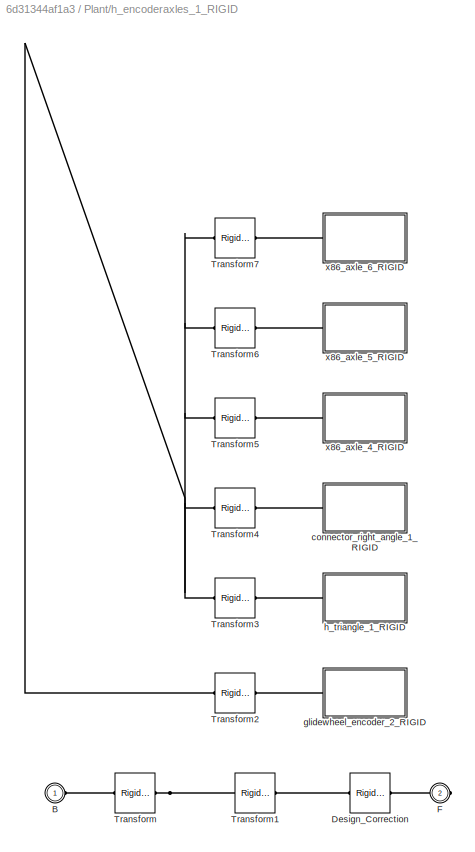
BLOCK [SubSystem] Plant/h_encoderaxles_1_RIGID
  Ports = [0, 0, 0, 0, 0, 1, 1]
  RequestExecContextInheritance = off
BLOCK [PMIOPort] Plant/h_encoderaxles_1_RIGID/B
  Side = Left
BLOCK [Reference] Plant/h_encoderaxles_1_RIGID/Design_Correction  REF=sm_lib/Frames and
Transforms/Rigid
Transform
  BaseAlignAxisA = +Y
  BaseAlignAxisB = +Z
  FollAlignAxisA = +X
  FollAlignAxisB = +Y
  LogSimulationData = off
  Ports = [0, 0, 0, 0, 0, 1, 1]
  RotationAngle = -pi/2-3.0420956054916015
  RotationAngleUnits = rad
  RotationAngle_conf = compiletime
  RotationArbitraryAxis = [-0 0 -1]
  RotationArbitraryAxis_conf = compiletime
  RotationMatrix = [1 0 0; 0 1 0; 0 0 1]
  RotationMatrix_conf = compiletime
  RotationMethod = ArbitraryAxis
  RotationSequence = XYX
  RotationSequenceAngles = [0 0 0]
  RotationSequenceAnglesUnits = deg
  RotationSequenceAngles_conf = compiletime
  RotationSequenceAxes = FollowerAxes
  RotationStandardAxis = +Z
  SourceBlock = sm_lib/Frames and\nTransforms/Rigid\nTransform
  SourceType = Rigid\nTransform
  TranslationCartesianOffset = [24.508089637866071 17.711031392187333 8.5401255470870616]
  TranslationCartesianOffset_conf = compiletime
  TranslationLengthUnit = mm
  TranslationMethod = None
  TranslationROffset = 0
  TranslationROffsetUnits = m
  TranslationROffset_conf = compiletime
  TranslationStandardAxis = +Z
  TranslationStandardOffset = 0
  TranslationStandardOffset_conf = compiletime
  TranslationThetaOffset = 0
  TranslationThetaOffsetUnits = deg
  TranslationThetaOffset_conf = compiletime
  TranslationZOffset = 0
  TranslationZOffsetUnits = m
  TranslationZOffset_conf = compiletime
BLOCK [PMIOPort] Plant/h_encoderaxles_1_RIGID/F
  Port = 2
  Side = Right
BLOCK [Reference] Plant/h_encoderaxles_1_RIGID/Transform  REF=sm_lib/Frames and
Transforms/Rigid
Transform
  BaseAlignAxisA = +Y
  BaseAlignAxisB = +Z
  FollAlignAxisA = +X
  FollAlignAxisB = +Y
  LogSimulationData = off
  Ports = [0, 0, 0, 0, 0, 1, 1]
  RotationAngle = 3.0420956054916015
  RotationAngleUnits = rad
  RotationAngle_conf = compiletime
  RotationArbitraryAxis = [-1 1.5754106539324166e-16 -3.1641356201816969e-15]
  RotationArbitraryAxis_conf = compiletime
  RotationMatrix = [1 0 0; 0 1 0; 0 0 1]
  RotationMatrix_conf = compiletime
  RotationMethod = ArbitraryAxis
  RotationSequence = XYX
  RotationSequenceAngles = [0 0 0]
  RotationSequenceAnglesUnits = deg
  RotationSequenceAngles_conf = compiletime
  RotationSequenceAxes = FollowerAxes
  RotationStandardAxis = +Z
  SourceBlock = sm_lib/Frames and\nTransforms/Rigid\nTransform
  SourceType = Rigid\nTransform
  TranslationCartesianOffset = [24.508089637866071 17.711031392187333 8.5401255470870616]
  TranslationCartesianOffset_conf = compiletime
  TranslationLengthUnit = mm
  TranslationMethod = Cartesian
  TranslationROffset = 0
  TranslationROffsetUnits = m
  TranslationROffset_conf = compiletime
  TranslationStandardAxis = +Z
  TranslationStandardOffset = 0
  TranslationStandardOffset_conf = compiletime
  TranslationThetaOffset = 0
  TranslationThetaOffsetUnits = deg
  TranslationThetaOffset_conf = compiletime
  TranslationZOffset = 0
  TranslationZOffsetUnits = m
  TranslationZOffset_conf = compiletime
BLOCK [Reference] Plant/h_encoderaxles_1_RIGID/Transform1  REF=sm_lib/Frames and
Transforms/Rigid
Transform
  BaseAlignAxisA = +Y
  BaseAlignAxisB = +Z
  FollAlignAxisA = +X
  FollAlignAxisB = +Y
  LogSimulationData = off
  Ports = [0, 0, 0, 0, 0, 1, 1]
  RotationAngle = 2.0943951023931975
  RotationAngleUnits = rad
  RotationAngle_conf = compiletime
  RotationArbitraryAxis = [-0.57735026918962429 -0.57735026918962629 0.57735026918962662]
  RotationArbitraryAxis_conf = compiletime
  RotationMatrix = [1 0 0; 0 1 0; 0 0 1]
  RotationMatrix_conf = compiletime
  RotationMethod = ArbitraryAxis
  RotationSequence = XYX
  RotationSequenceAngles = [0 0 0]
  RotationSequenceAnglesUnits = deg
  RotationSequenceAngles_conf = compiletime
  RotationSequenceAxes = FollowerAxes
  RotationStandardAxis = +Z
  SourceBlock = sm_lib/Frames and\nTransforms/Rigid\nTransform
  SourceType = Rigid\nTransform
  TranslationCartesianOffset = [13.983089637865053 16.866870285554842 29.580332105627452]
  TranslationCartesianOffset_conf = compiletime
  TranslationLengthUnit = mm
  TranslationMethod = Cartesian
  TranslationROffset = 0
  TranslationROffsetUnits = m
  TranslationROffset_conf = compiletime
  TranslationStandardAxis = +Z
  TranslationStandardOffset = 0
  TranslationStandardOffset_conf = compiletime
  TranslationThetaOffset = 0
  TranslationThetaOffsetUnits = deg
  TranslationThetaOffset_conf = compiletime
  TranslationZOffset = 0
  TranslationZOffsetUnits = m
  TranslationZOffset_conf = compiletime
BLOCK [Reference] Plant/h_encoderaxles_1_RIGID/Transform2  REF=sm_lib/Frames and
Transforms/Rigid
Transform
  BaseAlignAxisA = +Y
  BaseAlignAxisB = +Z
  FollAlignAxisA = +X
  FollAlignAxisB = +Y
  LogSimulationData = off
  Ports = [0, 0, 0, 0, 0, 1, 1]
  RotationAngle = 2.152761273624384
  RotationAngleUnits = rad
  RotationAngle_conf = compiletime
  RotationArbitraryAxis = [0.59556683818013412 0.53907354092019244 0.59556683818013556]
  RotationArbitraryAxis_conf = compiletime
  RotationMatrix = [1 0 0; 0 1 0; 0 0 1]
  RotationMatrix_conf = compiletime
  RotationMethod = ArbitraryAxis
  RotationSequence = XYX
  RotationSequenceAngles = [0 0 0]
  RotationSequenceAnglesUnits = deg
  RotationSequenceAngles_conf = compiletime
  RotationSequenceAxes = FollowerAxes
  RotationStandardAxis = +Z
  SourceBlock = sm_lib/Frames and\nTransforms/Rigid\nTransform
  SourceType = Rigid\nTransform
  TranslationCartesianOffset = [3.9830896378650893 0.057027133562839033 -3.3724154764092837]
  TranslationCartesianOffset_conf = compiletime
  TranslationLengthUnit = mm
  TranslationMethod = Cartesian
  TranslationROffset = 0
  TranslationROffsetUnits = m
  TranslationROffset_conf = compiletime
  TranslationStandardAxis = +Z
  TranslationStandardOffset = 0
  TranslationStandardOffset_conf = compiletime
  TranslationThetaOffset = 0
  TranslationThetaOffsetUnits = deg
  TranslationThetaOffset_conf = compiletime
  TranslationZOffset = 0
  TranslationZOffsetUnits = m
  TranslationZOffset_conf = compiletime
BLOCK [Reference] Plant/h_encoderaxles_1_RIGID/Transform3  REF=sm_lib/Frames and
Transforms/Rigid
Transform
  BaseAlignAxisA = +Y
  BaseAlignAxisB = +Z
  FollAlignAxisA = +X
  FollAlignAxisB = +Y
  LogSimulationData = off
  Ports = [0, 0, 0, 0, 0, 1, 1]
  RotationAngle = 3.071252132689227
  RotationAngleUnits = rad
  RotationAngle_conf = compiletime
  RotationArbitraryAxis = [-0.70666895787164763 -0.70666895787165263 -0.03518476888075537]
  RotationArbitraryAxis_conf = compiletime
  RotationMatrix = [1 0 0; 0 1 0; 0 0 1]
  RotationMatrix_conf = compiletime
  RotationMethod = ArbitraryAxis
  RotationSequence = XYX
  RotationSequenceAngles = [0 0 0]
  RotationSequenceAnglesUnits = deg
  RotationSequenceAngles_conf = compiletime
  RotationSequenceAxes = FollowerAxes
  RotationStandardAxis = +Z
  SourceBlock = sm_lib/Frames and\nTransforms/Rigid\nTransform
  SourceType = Rigid\nTransform
  TranslationCartesianOffset = [88.258089637865453 17.276122100546619 25.480708592190474]
  TranslationCartesianOffset_conf = compiletime
  TranslationLengthUnit = mm
  TranslationMethod = Cartesian
  TranslationROffset = 0
  TranslationROffsetUnits = m
  TranslationROffset_conf = compiletime
  TranslationStandardAxis = +Z
  TranslationStandardOffset = 0
  TranslationStandardOffset_conf = compiletime
  TranslationThetaOffset = 0
  TranslationThetaOffsetUnits = deg
  TranslationThetaOffset_conf = compiletime
  TranslationZOffset = 0
  TranslationZOffsetUnits = m
  TranslationZOffset_conf = compiletime
BLOCK [Reference] Plant/h_encoderaxles_1_RIGID/Transform4  REF=sm_lib/Frames and
Transforms/Rigid
Transform
  BaseAlignAxisA = +Y
  BaseAlignAxisB = +Z
  FollAlignAxisA = +X
  FollAlignAxisB = +Y
  LogSimulationData = off
  Ports = [0, 0, 0, 0, 0, 1, 1]
  RotationAngle = 3.0712521326892568
  RotationAngleUnits = rad
  RotationAngle_conf = compiletime
  RotationArbitraryAxis = [-0.70666895787165274 -0.035184768880752892 0.70666895787164763]
  RotationArbitraryAxis_conf = compiletime
  RotationMatrix = [1 0 0; 0 1 0; 0 0 1]
  RotationMatrix_conf = compiletime
  RotationMethod = ArbitraryAxis
  RotationSequence = XYX
  RotationSequenceAngles = [0 0 0]
  RotationSequenceAnglesUnits = deg
  RotationSequenceAngles_conf = compiletime
  RotationSequenceAxes = FollowerAxes
  RotationStandardAxis = +Z
  SourceBlock = sm_lib/Frames and\nTransforms/Rigid\nTransform
  SourceType = Rigid\nTransform
  TranslationCartesianOffset = [23.258089637866103 19.749512924159973 0.70385774641775622]
  TranslationCartesianOffset_conf = compiletime
  TranslationLengthUnit = mm
  TranslationMethod = Cartesian
  TranslationROffset = 0
  TranslationROffsetUnits = m
  TranslationROffset_conf = compiletime
  TranslationStandardAxis = +Z
  TranslationStandardOffset = 0
  TranslationStandardOffset_conf = compiletime
  TranslationThetaOffset = 0
  TranslationThetaOffsetUnits = deg
  TranslationThetaOffset_conf = compiletime
  TranslationZOffset = 0
  TranslationZOffsetUnits = m
  TranslationZOffset_conf = compiletime
BLOCK [Reference] Plant/h_encoderaxles_1_RIGID/Transform5  REF=sm_lib/Frames and
Transforms/Rigid
Transform
  BaseAlignAxisA = +Y
  BaseAlignAxisB = +Z
  FollAlignAxisA = +X
  FollAlignAxisB = +Y
  LogSimulationData = off
  Ports = [0, 0, 0, 0, 0, 1, 1]
  RotationAngle = 3.1415926535897882
  RotationAngleUnits = rad
  RotationAngle_conf = compiletime
  RotationArbitraryAxis = [2.3430246690306488e-15 -0.67106893654685129 -0.74139495709228975]
  RotationArbitraryAxis_conf = compiletime
  RotationMatrix = [1 0 0; 0 1 0; 0 0 1]
  RotationMatrix_conf = compiletime
  RotationMethod = ArbitraryAxis
  RotationSequence = XYX
  RotationSequenceAngles = [0 0 0]
  RotationSequenceAnglesUnits = deg
  RotationSequenceAngles_conf = compiletime
  RotationSequenceAxes = FollowerAxes
  RotationStandardAxis = +Z
  SourceBlock = sm_lib/Frames and\nTransforms/Rigid\nTransform
  SourceType = Rigid\nTransform
  TranslationCartesianOffset = [47.083089637865008 15.289827696924307 45.378138349144159]
  TranslationCartesianOffset_conf = compiletime
  TranslationLengthUnit = mm
  TranslationMethod = Cartesian
  TranslationROffset = 0
  TranslationROffsetUnits = m
  TranslationROffset_conf = compiletime
  TranslationStandardAxis = +Z
  TranslationStandardOffset = 0
  TranslationStandardOffset_conf = compiletime
  TranslationThetaOffset = 0
  TranslationThetaOffsetUnits = deg
  TranslationThetaOffset_conf = compiletime
  TranslationZOffset = 0
  TranslationZOffsetUnits = m
  TranslationZOffset_conf = compiletime
BLOCK [Reference] Plant/h_encoderaxles_1_RIGID/Transform6  REF=sm_lib/Frames and
Transforms/Rigid
Transform
  BaseAlignAxisA = +Y
  BaseAlignAxisB = +Z
  FollAlignAxisA = +X
  FollAlignAxisB = +Y
  LogSimulationData = off
  Ports = [0, 0, 0, 0, 0, 1, 1]
  RotationAngle = 3.1415926535897882
  RotationAngleUnits = rad
  RotationAngle_conf = compiletime
  RotationArbitraryAxis = [2.3430246690306472e-15 -0.67106893654685129 -0.74139495709228975]
  RotationArbitraryAxis_conf = compiletime
  RotationMatrix = [1 0 0; 0 1 0; 0 0 1]
  RotationMatrix_conf = compiletime
  RotationMethod = ArbitraryAxis
  RotationSequence = XYX
  RotationSequenceAngles = [0 0 0]
  RotationSequenceAnglesUnits = deg
  RotationSequenceAngles_conf = compiletime
  RotationSequenceAxes = FollowerAxes
  RotationStandardAxis = +Z
  SourceBlock = sm_lib/Frames and\nTransforms/Rigid\nTransform
  SourceType = Rigid\nTransform
  TranslationCartesianOffset = [47.083089637865342 1.032411190979611 28.000963750391605]
  TranslationCartesianOffset_conf = compiletime
  TranslationLengthUnit = mm
  TranslationMethod = Cartesian
  TranslationROffset = 0
  TranslationROffsetUnits = m
  TranslationROffset_conf = compiletime
  TranslationStandardAxis = +Z
  TranslationStandardOffset = 0
  TranslationStandardOffset_conf = compiletime
  TranslationThetaOffset = 0
  TranslationThetaOffsetUnits = deg
  TranslationThetaOffset_conf = compiletime
  TranslationZOffset = 0
  TranslationZOffsetUnits = m
  TranslationZOffset_conf = compiletime
BLOCK [Reference] Plant/h_encoderaxles_1_RIGID/Transform7  REF=sm_lib/Frames and
Transforms/Rigid
Transform
  BaseAlignAxisA = +Y
  BaseAlignAxisB = +Z
  FollAlignAxisA = +X
  FollAlignAxisB = +Y
  LogSimulationData = off
  Ports = [0, 0, 0, 0, 0, 1, 1]
  RotationAngle = 3.1415926535897882
  RotationAngleUnits = rad
  RotationAngle_conf = compiletime
  RotationArbitraryAxis = [2.3430246690306472e-15 -0.67106893654685129 -0.74139495709228975]
  RotationArbitraryAxis_conf = compiletime
  RotationMatrix = [1 0 0; 0 1 0; 0 0 1]
  RotationMatrix_conf = compiletime
  RotationMethod = ArbitraryAxis
  RotationSequence = XYX
  RotationSequenceAngles = [0 0 0]
  RotationSequenceAnglesUnits = deg
  RotationSequenceAngles_conf = compiletime
  RotationSequenceAxes = FollowerAxes
  RotationStandardAxis = +Z
  SourceBlock = sm_lib/Frames and\nTransforms/Rigid\nTransform
  SourceType = Rigid\nTransform
  TranslationCartesianOffset = [47.083089637864894 32.667002295676816 31.120721843199458]
  TranslationCartesianOffset_conf = compiletime
  TranslationLengthUnit = mm
  TranslationMethod = Cartesian
  TranslationROffset = 0
  TranslationROffsetUnits = m
  TranslationROffset_conf = compiletime
  TranslationStandardAxis = +Z
  TranslationStandardOffset = 0
  TranslationStandardOffset_conf = compiletime
  TranslationThetaOffset = 0
  TranslationThetaOffsetUnits = deg
  TranslationThetaOffset_conf = compiletime
  TranslationZOffset = 0
  TranslationZOffsetUnits = m
  TranslationZOffset_conf = compiletime
BLOCK [SubSystem] Plant/h_encoderaxles_1_RIGID/connector_right_angle_1_RIGID
  Ports = [0, 0, 0, 0, 0, 1]
  RequestExecContextInheritance = off
BLOCK [PMIOPort] Plant/h_encoderaxles_1_RIGID/connector_right_angle_1_RIGID/F
  Side = Left
BLOCK [Reference] Plant/h_encoderaxles_1_RIGID/connector_right_angle_1_RIGID/Solid  REF=sm_lib/Body Elements/Solid
  BasedOnType = Density
  CenterOfMass = [-9.2850739875563288 3.0093098119265674e-05 2.6118746961723436]
  CenterOfMassUnits = mm
  CenterOfMass_conf = compiletime
  Density = 1000
  DensityUnits = kg/(m^3)
  Density_conf = compiletime
  DoExposeReferenceFrame = on
  ExportConvexHullGeometry = off
  ExtGeomFileName = <userpath>\Documents\MATLAB\RotaryPendulum\models\release\physmod\STL_Files\h_connector_right_angle_Default_sldprt.STL
  ExtGeomFileUnits = mm
  GraphicAmbientColor = [0.15 0.15 0.15 1.0]
  GraphicAmbientColor_conf = compiletime
  GraphicDiffuseColor = [0.2 0.2 0.2]
  GraphicDiffuseColor_conf = compiletime
  GraphicEmissiveColor = [0.0 0.0 0.0 1.0]
  GraphicEmissiveColor_conf = compiletime
  GraphicOpacity = 1
  GraphicOpacity_conf = compiletime
  GraphicShininess = 75
  GraphicShininess_conf = compiletime
  GraphicSpecularColor = [0.5 0.5 0.5 1.0]
  GraphicSpecularColor_conf = compiletime
  GraphicType = FromGeometry
  GraphicVisPropType = SimpleVisualProperties
  InertiaType = Custom
  LogSimulationData = off
  MarkerShape = Sphere
  MarkerSize = 10
  MarkerSizeUnits = m
  MarkerSize_conf = compiletime
  Mass = 0.00058767552757679601
  MassUnits = kg
  Mass_conf = compiletime
  MomentsOfInertia = [0.01287493955128299 0.021139675931830724 0.012862519708781989]
  MomentsOfInertiaUnits = kg*mm^2
  MomentsOfInertia_conf = compiletime
  Ports = [0, 0, 0, 0, 0, 0, 1]
  ProductsOfInertia = [1.0581915796389266e-07 0.0040573015479247326 -2.6079178646368151e-08]
  ProductsOfInertiaUnits = kg*mm^2
  ProductsOfInertia_conf = compiletime
  SerializedFrames = <Frames/>
  SourceBlock = sm_lib/Body Elements/Solid
  SourceType = File Solid
  StepReaderType = HEX
  UnitType = Custom
BLOCK [SubSystem] Plant/h_encoderaxles_1_RIGID/glidewheel_encoder_2_RIGID
  Ports = [0, 0, 0, 0, 0, 1]
  RequestExecContextInheritance = off
BLOCK [PMIOPort] Plant/h_encoderaxles_1_RIGID/glidewheel_encoder_2_RIGID/F
  Side = Left
BLOCK [Reference] Plant/h_encoderaxles_1_RIGID/glidewheel_encoder_2_RIGID/Solid  REF=sm_lib/Body Elements/Solid
  BasedOnType = Density
  CenterOfMass = [20 23.311862389290109 3.5000000000000004]
  CenterOfMassUnits = mm
  CenterOfMass_conf = compiletime
  Density = 1000
  DensityUnits = kg/(m^3)
  Density_conf = compiletime
  DoExposeReferenceFrame = on
  ExportConvexHullGeometry = off
  ExtGeomFileName = glidewheel_encoder_Default_sldprt.STL
  ExtGeomFileUnits = mm
  GraphicAmbientColor = [0.15 0.15 0.15 1.0]
  GraphicAmbientColor_conf = compiletime
  GraphicDiffuseColor = [0.4 0.4 0.4]
  GraphicDiffuseColor_conf = compiletime
  GraphicEmissiveColor = [0.0 0.0 0.0 1.0]
  GraphicEmissiveColor_conf = compiletime
  GraphicOpacity = 1
  GraphicOpacity_conf = compiletime
  GraphicShininess = 75
  GraphicShininess_conf = compiletime
  GraphicSpecularColor = [0.5 0.5 0.5 1.0]
  GraphicSpecularColor_conf = compiletime
  GraphicType = FromGeometry
  GraphicVisPropType = SimpleVisualProperties
  InertiaType = Custom
  LogSimulationData = off
  MarkerShape = Sphere
  MarkerSize = 10
  MarkerSizeUnits = m
  MarkerSize_conf = compiletime
  Mass = 0.012717581311371812
  MassUnits = kg
  Mass_conf = compiletime
  MomentsOfInertia = [2.4036537381786549 1.6085577350900775 3.9083512258925288]
  MomentsOfInertiaUnits = kg*mm^2
  MomentsOfInertia_conf = compiletime
  Ports = [0, 0, 0, 0, 0, 0, 1]
  ProductsOfInertia = [0 0 0]
  ProductsOfInertiaUnits = kg*mm^2
  ProductsOfInertia_conf = compiletime
  SerializedFrames = <Frames/>
  SourceBlock = sm_lib/Body Elements/Solid
  SourceType = File Solid
  StepReaderType = HEX
  UnitType = Custom
BLOCK [SubSystem] Plant/h_encoderaxles_1_RIGID/h_triangle_1_RIGID
  Ports = [0, 0, 0, 0, 0, 1]
  RequestExecContextInheritance = off
BLOCK [PMIOPort] Plant/h_encoderaxles_1_RIGID/h_triangle_1_RIGID/F
  Side = Left
BLOCK [Reference] Plant/h_encoderaxles_1_RIGID/h_triangle_1_RIGID/Solid  REF=sm_lib/Body Elements/Solid
  BasedOnType = Density
  CenterOfMass = [0 0 -7.5566061536848483]
  CenterOfMassUnits = mm
  CenterOfMass_conf = compiletime
  Density = 1000
  DensityUnits = kg/(m^3)
  Density_conf = compiletime
  DoExposeReferenceFrame = on
  ExportConvexHullGeometry = off
  ExtGeomFileName = h_triangle_Default_sldprt.STL
  ExtGeomFileUnits = mm
  GraphicAmbientColor = [0.15 0.15 0.15 1.0]
  GraphicAmbientColor_conf = compiletime
  GraphicDiffuseColor = [0.2 0.2 0.2]
  GraphicDiffuseColor_conf = compiletime
  GraphicEmissiveColor = [0.0 0.0 0.0 1.0]
  GraphicEmissiveColor_conf = compiletime
  GraphicOpacity = 1
  GraphicOpacity_conf = compiletime
  GraphicShininess = 75
  GraphicShininess_conf = compiletime
  GraphicSpecularColor = [0.5 0.5 0.5 1.0]
  GraphicSpecularColor_conf = compiletime
  GraphicType = FromGeometry
  GraphicVisPropType = SimpleVisualProperties
  InertiaType = Custom
  LogSimulationData = off
  MarkerShape = Sphere
  MarkerSize = 10
  MarkerSizeUnits = m
  MarkerSize_conf = compiletime
  Mass = 0.0010321252629775849
  MassUnits = kg
  Mass_conf = compiletime
  MomentsOfInertia = [0.036987929193085974 0.14119048806599191 0.1060088988565826]
  MomentsOfInertiaUnits = kg*mm^2
  MomentsOfInertia_conf = compiletime
  Ports = [0, 0, 0, 0, 0, 0, 1]
  ProductsOfInertia = [0 0 0]
  ProductsOfInertiaUnits = kg*mm^2
  ProductsOfInertia_conf = compiletime
  SerializedFrames = <Frames/>
  SourceBlock = sm_lib/Body Elements/Solid
  SourceType = File Solid
  StepReaderType = HEX
  UnitType = Custom
BLOCK [SubSystem] Plant/h_encoderaxles_1_RIGID/x86_axle_4_RIGID
  Ports = [0, 0, 0, 0, 0, 1]
  RequestExecContextInheritance = off
BLOCK [PMIOPort] Plant/h_encoderaxles_1_RIGID/x86_axle_4_RIGID/F
  Side = Left
BLOCK [Reference] Plant/h_encoderaxles_1_RIGID/x86_axle_4_RIGID/Solid  REF=sm_lib/Body Elements/Solid
  BasedOnType = Density
  CenterOfMass = [0 0 0]
  CenterOfMassUnits = mm
  CenterOfMass_conf = compiletime
  Density = 1000
  DensityUnits = kg/(m^3)
  Density_conf = compiletime
  DoExposeReferenceFrame = on
  ExportConvexHullGeometry = off
  ExtGeomFileName = 86_axle_Default_sldprt.STL
  ExtGeomFileUnits = mm
  GraphicAmbientColor = [0.15 0.15 0.15 1.0]
  GraphicAmbientColor_conf = compiletime
  GraphicDiffuseColor = [0.4 0.4 0.4]
  GraphicDiffuseColor_conf = compiletime
  GraphicEmissiveColor = [0.0 0.0 0.0 1.0]
  GraphicEmissiveColor_conf = compiletime
  GraphicOpacity = 1
  GraphicOpacity_conf = compiletime
  GraphicShininess = 75
  GraphicShininess_conf = compiletime
  GraphicSpecularColor = [0.5 0.5 0.5 1.0]
  GraphicSpecularColor_conf = compiletime
  GraphicType = FromGeometry
  GraphicVisPropType = SimpleVisualProperties
  InertiaType = Custom
  LogSimulationData = off
  MarkerShape = Sphere
  MarkerSize = 10
  MarkerSizeUnits = m
  MarkerSize_conf = compiletime
  Mass = 0.0011644908507951884
  MassUnits = kg
  Mass_conf = compiletime
  MomentsOfInertia = [0.0027714374516001608 0.7160611630059921 0.7160611630059921]
  MomentsOfInertiaUnits = kg*mm^2
  MomentsOfInertia_conf = compiletime
  Ports = [0, 0, 0, 0, 0, 0, 1]
  ProductsOfInertia = [0 0 0]
  ProductsOfInertiaUnits = kg*mm^2
  ProductsOfInertia_conf = compiletime
  SerializedFrames = <Frames/>
  SourceBlock = sm_lib/Body Elements/Solid
  SourceType = File Solid
  StepReaderType = HEX
  UnitType = Custom
BLOCK [SubSystem] Plant/h_encoderaxles_1_RIGID/x86_axle_5_RIGID
  Ports = [0, 0, 0, 0, 0, 1]
  RequestExecContextInheritance = off
BLOCK [PMIOPort] Plant/h_encoderaxles_1_RIGID/x86_axle_5_RIGID/F
  Side = Left
BLOCK [Reference] Plant/h_encoderaxles_1_RIGID/x86_axle_5_RIGID/Solid  REF=sm_lib/Body Elements/Solid
  BasedOnType = Density
  CenterOfMass = [0 0 0]
  CenterOfMassUnits = mm
  CenterOfMass_conf = compiletime
  Density = 1000
  DensityUnits = kg/(m^3)
  Density_conf = compiletime
  DoExposeReferenceFrame = on
  ExportConvexHullGeometry = off
  ExtGeomFileName = 86_axle_Default_sldprt.STL
  ExtGeomFileUnits = mm
  GraphicAmbientColor = [0.15 0.15 0.15 1.0]
  GraphicAmbientColor_conf = compiletime
  GraphicDiffuseColor = [0.4 0.4 0.4]
  GraphicDiffuseColor_conf = compiletime
  GraphicEmissiveColor = [0.0 0.0 0.0 1.0]
  GraphicEmissiveColor_conf = compiletime
  GraphicOpacity = 1
  GraphicOpacity_conf = compiletime
  GraphicShininess = 75
  GraphicShininess_conf = compiletime
  GraphicSpecularColor = [0.5 0.5 0.5 1.0]
  GraphicSpecularColor_conf = compiletime
  GraphicType = FromGeometry
  GraphicVisPropType = SimpleVisualProperties
  InertiaType = Custom
  LogSimulationData = off
  MarkerShape = Sphere
  MarkerSize = 10
  MarkerSizeUnits = m
  MarkerSize_conf = compiletime
  Mass = 0.0011644908507951884
  MassUnits = kg
  Mass_conf = compiletime
  MomentsOfInertia = [0.0027714374516001608 0.7160611630059921 0.7160611630059921]
  MomentsOfInertiaUnits = kg*mm^2
  MomentsOfInertia_conf = compiletime
  Ports = [0, 0, 0, 0, 0, 0, 1]
  ProductsOfInertia = [0 0 0]
  ProductsOfInertiaUnits = kg*mm^2
  ProductsOfInertia_conf = compiletime
  SerializedFrames = <Frames/>
  SourceBlock = sm_lib/Body Elements/Solid
  SourceType = File Solid
  StepReaderType = HEX
  UnitType = Custom
BLOCK [SubSystem] Plant/h_encoderaxles_1_RIGID/x86_axle_6_RIGID
  Ports = [0, 0, 0, 0, 0, 1]
  RequestExecContextInheritance = off
BLOCK [PMIOPort] Plant/h_encoderaxles_1_RIGID/x86_axle_6_RIGID/F
  Side = Left
BLOCK [Reference] Plant/h_encoderaxles_1_RIGID/x86_axle_6_RIGID/Solid  REF=sm_lib/Body Elements/Solid
  BasedOnType = Density
  CenterOfMass = [0 0 0]
  CenterOfMassUnits = mm
  CenterOfMass_conf = compiletime
  Density = 1000
  DensityUnits = kg/(m^3)
  Density_conf = compiletime
  DoExposeReferenceFrame = on
  ExportConvexHullGeometry = off
  ExtGeomFileName = 86_axle_Default_sldprt.STL
  ExtGeomFileUnits = mm
  GraphicAmbientColor = [0.15 0.15 0.15 1.0]
  GraphicAmbientColor_conf = compiletime
  GraphicDiffuseColor = [0.4 0.4 0.4]
  GraphicDiffuseColor_conf = compiletime
  GraphicEmissiveColor = [0.0 0.0 0.0 1.0]
  GraphicEmissiveColor_conf = compiletime
  GraphicOpacity = 1
  GraphicOpacity_conf = compiletime
  GraphicShininess = 75
  GraphicShininess_conf = compiletime
  GraphicSpecularColor = [0.5 0.5 0.5 1.0]
  GraphicSpecularColor_conf = compiletime
  GraphicType = FromGeometry
  GraphicVisPropType = SimpleVisualProperties
  InertiaType = Custom
  LogSimulationData = off
  MarkerShape = Sphere
  MarkerSize = 10
  MarkerSizeUnits = m
  MarkerSize_conf = compiletime
  Mass = 0.0011644908507951884
  MassUnits = kg
  Mass_conf = compiletime
  MomentsOfInertia = [0.0027714374516001608 0.7160611630059921 0.7160611630059921]
  MomentsOfInertiaUnits = kg*mm^2
  MomentsOfInertia_conf = compiletime
  Ports = [0, 0, 0, 0, 0, 0, 1]
  ProductsOfInertia = [0 0 0]
  ProductsOfInertiaUnits = kg*mm^2
  ProductsOfInertia_conf = compiletime
  SerializedFrames = <Frames/>
  SourceBlock = sm_lib/Body Elements/Solid
  SourceType = File Solid
  StepReaderType = HEX
  UnitType = Custom
BLOCK [Reference] Simulink-PS Converter  REF=nesl_utility/Simulink-PS
Converter
  AffineConversion = off
  FilteringAndDerivatives = provide
  Frequencies = []
  InputFilterTimeConstant = 0.001
  LeftPortType = input
  NoiseDistribution = none
  NoiseParameters = []
  PhysicalDomain = network_engine_domain
  Ports = [1, 0, 0, 0, 0, 0, 1]
  PseudoPeriodic = off
  RTWMemSecDataConstants = Inherit from model
  RTWMemSecDataInternal = Inherit from model
  RTWMemSecDataParameters = Inherit from model
  RTWMemSecFuncExecute = Inherit from model
  RTWMemSecFuncInitTerm = Inherit from model
  RightPortType = output
  SimscapeFilterOrder = 1
  SourceBlock = nesl_utility/Simulink-PS\nConverter
  SourceType = Simulink-PS\nConverter
  SubClassName = ps_input
  UdotUserProvided = 0
BLOCK [Scope] derivation of shaft angle (radians)
  DataFormat = StructureWithTime
  Decimation = 1
  Floating = off
  Grid = on
  LimitDataPoints = off
  MaxDataPoints = 5000
  NumInputPorts = 1
  Ports = [1]
  SampleInput = off
  SampleTime = -1
  SaveName = ScopeData2
  SaveToWorkspace = off
  ShowLegends = off
  TickLabels = OneTimeTick
  TimeRange = auto
  YMax = 156.73003
  YMin = -17.41445
  ZoomMode = on
BLOCK [Scope] derivative of pendulum angle (radians)
  DataFormat = StructureWithTime
  Decimation = 1
  Floating = off
  Grid = on
  LimitDataPoints = off
  MaxDataPoints = 5000
  NumInputPorts = 1
  Ports = [1]
  SampleInput = off
  SampleTime = -1
  SaveName = ScopeData3
  SaveToWorkspace = off
  ShowLegends = off
  TickLabels = OneTimeTick
  TimeRange = auto
  YMax = 40.31023
  YMin = -40.35172
  ZoomMode = on
BLOCK [Scope] pendulum angle (radians)
  DataFormat = StructureWithTime
  Decimation = 1
  Floating = off
  Grid = on
  LimitDataPoints = off
  MaxDataPoints = 5000
  NumInputPorts = 1
  Ports = [1]
  SampleInput = off
  SampleTime = -1
  SaveName = ScopeData1
  SaveToWorkspace = off
  ShowLegends = off
  TickLabels = OneTimeTick
  TimeRange = auto
  YMax = 5.51722
  YMin = 2.87763
  ZoomMode = on
BLOCK [Scope] shaft angle (radians)
  DataFormat = StructureWithTime
  Decimation = 1
  Floating = off
  Grid = on
  LimitDataPoints = off
  MaxDataPoints = 5000
  NumInputPorts = 1
  Ports = [1]
  SampleInput = off
  SampleTime = -1
  SaveName = ScopeData
  SaveToWorkspace = off
  ShowLegends = off
  TickLabels = OneTimeTick
  TimeRange = auto
  YMax = 1213.27335
  YMin = -134.80815
  ZoomMode = on
ANNOTATION Plant/h_39_axle_1_RIGID: for visualisation only, better isometric
LINE Constant:1 -> Limit:1
LINE Demux1:1 -> pendulum angle (radians):1
LINE Demux1:2 -> derivative of pendulum angle (radians):1
LINE Demux:1 -> shaft angle (radians):1
LINE Demux:2 -> derivation of shaft angle (radians):1
LINE Limit:1 -> Simulink-PS Converter:1
LINE Plant/Bus Creator1:1 -> Plant/beta_bus:1
LINE Plant/Bus Creator:1 -> Plant/alpha_bus:1
LINE Plant/PS-Simulink Converter1:1 -> Plant/Bus Creator1:2
LINE Plant/PS-Simulink Converter2:1 -> Plant/Bus Creator:2
LINE Plant/PS-Simulink Converter4:1 -> Plant/Bus Creator:1
LINE Plant/PS-Simulink Converter:1 -> Plant/Bus Creator1:1
LINE Plant:1 -> Demux:1
LINE Plant:2 -> Demux1:1
PLINE Plant/ControlleTorque:RConn1 -- Plant/Revolute Joint alpha:LConn2
PNET net1: Plant/Mechanical Rotational Reference:LConn1 -- Plant/Rotational Friction:RConn1 -- Plant/SS Intf:LConn2
PNET net2: Plant/MechanismConfiguration:RConn1 -- Plant/Revolute Joint alpha:LConn1 -- Plant/Solver Configuration:RConn1 -- Plant/World:RConn1
PNET net3: Plant/PS-Simulink Converter1:LConn1 -- Plant/Revolute Joint beta:RConn3 -- Plant/SS Intf:LConn1
PLINE Plant/PS-Simulink Converter2:LConn1 -- Plant/Revolute Joint alpha:RConn3
PLINE Plant/PS-Simulink Converter4:LConn1 -- Plant/Revolute Joint alpha:RConn2
PLINE Plant/PS-Simulink Converter:LConn1 -- Plant/Revolute Joint beta:RConn2
PLINE Plant/Revolute Joint alpha:RConn1 -- Plant/h_39_axle_1_RIGID:LConn1
PLINE Plant/Revolute Joint beta:LConn1 -- Plant/h_encoderaxles_1_RIGID:RConn1
PLINE Plant/Revolute Joint beta:LConn2 -- Plant/SS Intf:RConn1
PLINE Plant/Revolute Joint beta:RConn1 -- Plant/h_RIP_arm_v2_1_RIGID:LConn1
PLINE Plant/Rotational Friction:LConn1 -- Plant/SS Intf:RConn2
PLINE Plant/SS Intf/C:RConn1 -- Plant/SS Intf/Ideal Angular Velocity Source:RConn2
PLINE Plant/SS Intf/Ideal Angular Velocity Source:LConn1 -- Plant/SS Intf/Ideal Torque Sensor:RConn1
PLINE Plant/SS Intf/Ideal Angular Velocity Source:RConn1 -- Plant/SS Intf/w:RConn1
PLINE Plant/SS Intf/Ideal Torque Sensor:LConn1 -- Plant/SS Intf/R:RConn1
PLINE Plant/SS Intf/Ideal Torque Sensor:RConn2 -- Plant/SS Intf/T:RConn1
PLINE Plant/h_39_axle_1_RIGID/B:RConn1 -- Plant/h_39_axle_1_RIGID/Transform2:LConn1
PLINE Plant/h_39_axle_1_RIGID/F:RConn1 -- Plant/h_39_axle_1_RIGID/Transform:RConn1
PNET net4: Plant/h_39_axle_1_RIGID/Solid:RConn1 -- Plant/h_39_axle_1_RIGID/Transform1:RConn1 -- Plant/h_39_axle_1_RIGID/Transform:LConn1
PLINE Plant/h_39_axle_1_RIGID/Transform1:LConn1 -- Plant/h_39_axle_1_RIGID/Transform2:RConn1
PLINE Plant/h_39_axle_1_RIGID:RConn1 -- Plant/h_encoderaxles_1_RIGID:LConn1
PLINE Plant/h_RIP_arm_v2_1_RIGID/B:RConn1 -- Plant/h_RIP_arm_v2_1_RIGID/Transform:RConn1
PLINE Plant/h_RIP_arm_v2_1_RIGID/F:RConn1 -- Plant/h_RIP_arm_v2_1_RIGID/Transform1:RConn1
PNET net5: Plant/h_RIP_arm_v2_1_RIGID/Transform1:LConn1 -- Plant/h_RIP_arm_v2_1_RIGID/Transform2:LConn1 -- Plant/h_RIP_arm_v2_1_RIGID/Transform3:LConn1 -- Plant/h_RIP_arm_v2_1_RIGID/Transform4:LConn1 -- Plant/h_RIP_arm_v2_1_RIGID/Transform5:LConn1 -- Plant/h_RIP_arm_v2_1_RIGID/Transform:LConn1
PLINE Plant/h_RIP_arm_v2_1_RIGID/Transform2:RConn1 -- Plant/h_RIP_arm_v2_1_RIGID/h_axle_asymmetric_1_RIGID:LConn1
PLINE Plant/h_RIP_arm_v2_1_RIGID/Transform3:RConn1 -- Plant/h_RIP_arm_v2_1_RIGID/h_connector_straight_1_RIGID:LConn1
PLINE Plant/h_RIP_arm_v2_1_RIGID/Transform4:RConn1 -- Plant/h_RIP_arm_v2_1_RIGID/h_39_axle_1_RIGID:LConn1
PLINE Plant/h_RIP_arm_v2_1_RIGID/Transform5:RConn1 -- Plant/h_RIP_arm_v2_1_RIGID/h_collar_1_RIGID:LConn1
PLINE Plant/h_RIP_arm_v2_1_RIGID/h_39_axle_1_RIGID/F:RConn1 -- Plant/h_RIP_arm_v2_1_RIGID/h_39_axle_1_RIGID/Solid:RConn1
PLINE Plant/h_RIP_arm_v2_1_RIGID/h_axle_asymmetric_1_RIGID/F:RConn1 -- Plant/h_RIP_arm_v2_1_RIGID/h_axle_asymmetric_1_RIGID/Solid:RConn1
PLINE Plant/h_RIP_arm_v2_1_RIGID/h_collar_1_RIGID/F:RConn1 -- Plant/h_RIP_arm_v2_1_RIGID/h_collar_1_RIGID/Solid:RConn1
PLINE Plant/h_RIP_arm_v2_1_RIGID/h_connector_straight_1_RIGID/F:RConn1 -- Plant/h_RIP_arm_v2_1_RIGID/h_connector_straight_1_RIGID/Solid:RConn1
PLINE Plant/h_RIP_arm_v2_1_RIGID:RConn1 -- Plant/h_RIP_pendulum_1_RIGID:LConn1
PLINE Plant/h_RIP_pendulum_1_RIGID/F:RConn1 -- Plant/h_RIP_pendulum_1_RIGID/Transform:RConn1
PNET net6: Plant/h_RIP_pendulum_1_RIGID/Transform1:LConn1 -- Plant/h_RIP_pendulum_1_RIGID/Transform2:LConn1 -- Plant/h_RIP_pendulum_1_RIGID/Transform3:LConn1 -- Plant/h_RIP_pendulum_1_RIGID/Transform4:LConn1 -- Plant/h_RIP_pendulum_1_RIGID/Transform5:LConn1 -- Plant/h_RIP_pendulum_1_RIGID/Transform:LConn1
PLINE Plant/h_RIP_pendulum_1_RIGID/Transform1:RConn1 -- Plant/h_RIP_pendulum_1_RIGID/h_connector_right_angle_1_RIGID:LConn1
PLINE Plant/h_RIP_pendulum_1_RIGID/Transform2:RConn1 -- Plant/h_RIP_pendulum_1_RIGID/h_connector_straight_1_RIGID:LConn1
PLINE Plant/h_RIP_pendulum_1_RIGID/Transform3:RConn1 -- Plant/h_RIP_pendulum_1_RIGID/h_10_axle_1_RIGID:LConn1
PLINE Plant/h_RIP_pendulum_1_RIGID/Transform4:RConn1 -- Plant/h_RIP_pendulum_1_RIGID/h_79_axle_1_RIGID:LConn1
PLINE Plant/h_RIP_pendulum_1_RIGID/Transform5:RConn1 -- Plant/h_RIP_pendulum_1_RIGID/Transform6:LConn1
PLINE Plant/h_RIP_pendulum_1_RIGID/Transform6:RConn1 -- Plant/h_RIP_pendulum_1_RIGID/h_connector_straight_1_RIGID1:LConn1
PLINE Plant/h_RIP_pendulum_1_RIGID/h_10_axle_1_RIGID/F:RConn1 -- Plant/h_RIP_pendulum_1_RIGID/h_10_axle_1_RIGID/Solid:RConn1
PLINE Plant/h_RIP_pendulum_1_RIGID/h_79_axle_1_RIGID/F:RConn1 -- Plant/h_RIP_pendulum_1_RIGID/h_79_axle_1_RIGID/Solid:RConn1
PLINE Plant/h_RIP_pendulum_1_RIGID/h_connector_right_angle_1_RIGID/F:RConn1 -- Plant/h_RIP_pendulum_1_RIGID/h_connector_right_angle_1_RIGID/Solid:RConn1
PLINE Plant/h_RIP_pendulum_1_RIGID/h_connector_straight_1_RIGID/F:RConn1 -- Plant/h_RIP_pendulum_1_RIGID/h_connector_straight_1_RIGID/Solid:RConn1
PLINE Plant/h_RIP_pendulum_1_RIGID/h_connector_straight_1_RIGID1/F:RConn1 -- Plant/h_RIP_pendulum_1_RIGID/h_connector_straight_1_RIGID1/Solid:RConn1
PLINE Plant/h_encoderaxles_1_RIGID/B:RConn1 -- Plant/h_encoderaxles_1_RIGID/Transform:RConn1
PLINE Plant/h_encoderaxles_1_RIGID/Design_Correction:LConn1 -- Plant/h_encoderaxles_1_RIGID/Transform1:RConn1
PLINE Plant/h_encoderaxles_1_RIGID/Design_Correction:RConn1 -- Plant/h_encoderaxles_1_RIGID/F:RConn1
PNET net7: Plant/h_encoderaxles_1_RIGID/Transform1:LConn1 -- Plant/h_encoderaxles_1_RIGID/Transform2:LConn1 -- Plant/h_encoderaxles_1_RIGID/Transform3:LConn1 -- Plant/h_encoderaxles_1_RIGID/Transform4:LConn1 -- Plant/h_encoderaxles_1_RIGID/Transform5:LConn1 -- Plant/h_encoderaxles_1_RIGID/Transform6:LConn1 -- Plant/h_encoderaxles_1_RIGID/Transform7:LConn1 -- Plant/h_encoderaxles_1_RIGID/Transform:LConn1
PLINE Plant/h_encoderaxles_1_RIGID/Transform2:RConn1 -- Plant/h_encoderaxles_1_RIGID/glidewheel_encoder_2_RIGID:LConn1
PLINE Plant/h_encoderaxles_1_RIGID/Transform3:RConn1 -- Plant/h_encoderaxles_1_RIGID/h_triangle_1_RIGID:LConn1
PLINE Plant/h_encoderaxles_1_RIGID/Transform4:RConn1 -- Plant/h_encoderaxles_1_RIGID/connector_right_angle_1_RIGID:LConn1
PLINE Plant/h_encoderaxles_1_RIGID/Transform5:RConn1 -- Plant/h_encoderaxles_1_RIGID/x86_axle_4_RIGID:LConn1
PLINE Plant/h_encoderaxles_1_RIGID/Transform6:RConn1 -- Plant/h_encoderaxles_1_RIGID/x86_axle_5_RIGID:LConn1
PLINE Plant/h_encoderaxles_1_RIGID/Transform7:RConn1 -- Plant/h_encoderaxles_1_RIGID/x86_axle_6_RIGID:LConn1
PLINE Plant/h_encoderaxles_1_RIGID/connector_right_angle_1_RIGID/F:RConn1 -- Plant/h_encoderaxles_1_RIGID/connector_right_angle_1_RIGID/Solid:RConn1
PLINE Plant/h_encoderaxles_1_RIGID/glidewheel_encoder_2_RIGID/F:RConn1 -- Plant/h_encoderaxles_1_RIGID/glidewheel_encoder_2_RIGID/Solid:RConn1
PLINE Plant/h_encoderaxles_1_RIGID/h_triangle_1_RIGID/F:RConn1 -- Plant/h_encoderaxles_1_RIGID/h_triangle_1_RIGID/Solid:RConn1
PLINE Plant/h_encoderaxles_1_RIGID/x86_axle_4_RIGID/F:RConn1 -- Plant/h_encoderaxles_1_RIGID/x86_axle_4_RIGID/Solid:RConn1
PLINE Plant/h_encoderaxles_1_RIGID/x86_axle_5_RIGID/F:RConn1 -- Plant/h_encoderaxles_1_RIGID/x86_axle_5_RIGID/Solid:RConn1
PLINE Plant/h_encoderaxles_1_RIGID/x86_axle_6_RIGID/F:RConn1 -- Plant/h_encoderaxles_1_RIGID/x86_axle_6_RIGID/Solid:RConn1
PLINE Plant:LConn1 -- Simulink-PS Converter:RConn1
note: PNET lines group multi-terminal physical nets as a canonical sorted terminal list (undirected conserving connections); 2-terminal nets keep the pairwise PLINE form
